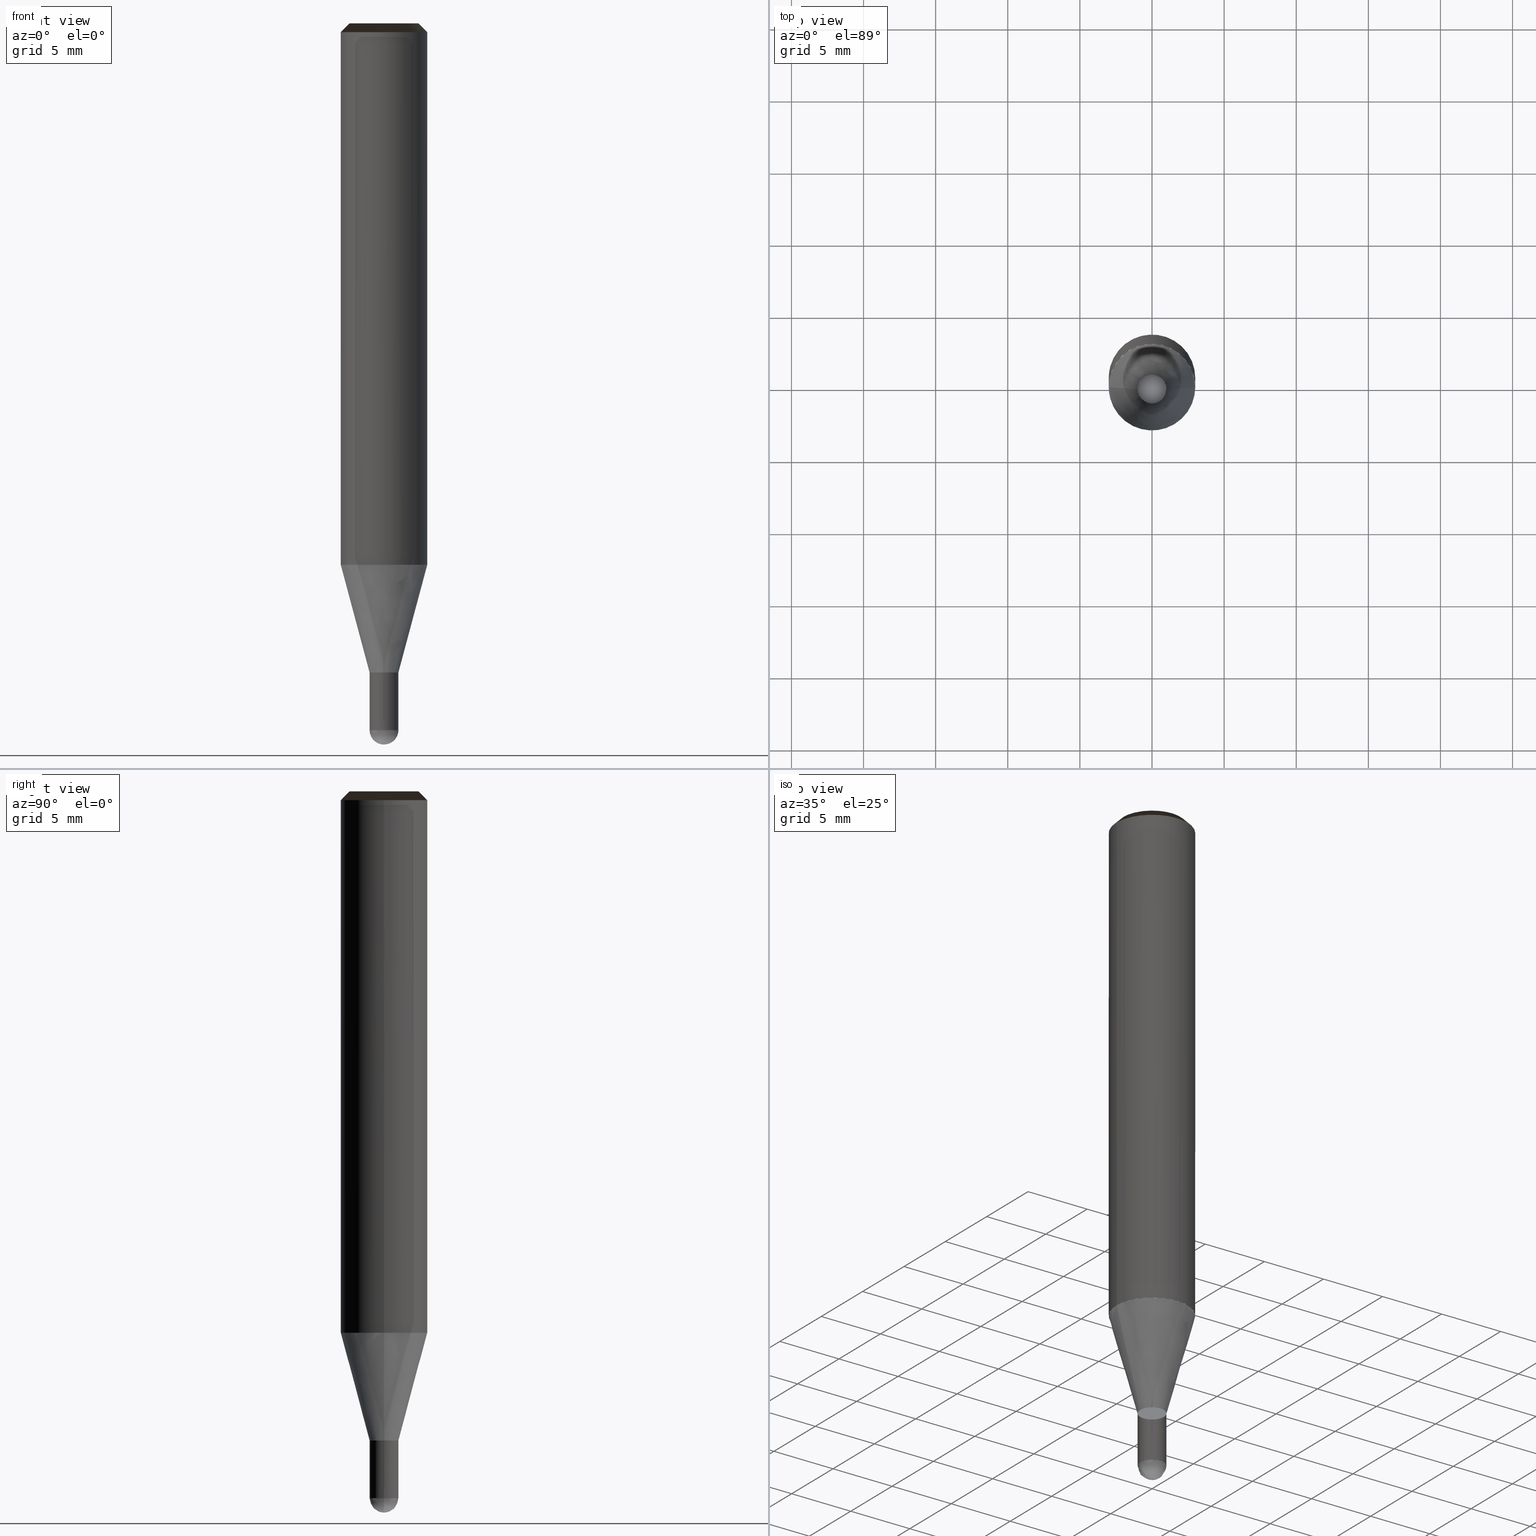
[diagram: canonical four-view strip — front | top / right | iso, engineering-drawing reading convention]
A machine part, canonical four-view strip (front | top / right | iso — engineering-drawing reading convention). The complete STEP part file that produces these views, byte-faithful:
ISO-10303-21;
HEADER;
/* Generated by ISBE GmbH (www.isbe.de) */
/* OPTION: using custom schema-name function */

FILE_DESCRIPTION(
/* description */ (''),
/* implementation_level */ '2;1');

FILE_NAME(
/*name*/ 'SHBS-2020-S06-STH',
/*time_stamp*/'2023-9-13T7:47:22',
/*author*/ ('ISBE GmbH'),
/*organization*/ ('ISBE GmbH'),
/*preprocessor_version*/ 'STEP IO v1.0',
/*originating_system*/ '',
/*authorisation*/ '');

FILE_SCHEMA (('AUTOMOTIVE_DESIGN'));
ENDSEC;

DATA;
#10=SHAPE_DEFINITION_REPRESENTATION(#11,#57);
#11=PRODUCT_DEFINITION_SHAPE('Document','',#13);
#12=PRODUCT_DEFINITION_CONTEXT('3D Mechanical Parts',#17,'design');
#13=PRODUCT_DEFINITION('A','First version',#14,#12);
#14=PRODUCT_DEFINITION_FORMATION_WITH_SPECIFIED_SOURCE('A','First version',#19,.MADE.);
#15=PRODUCT_RELATED_PRODUCT_CATEGORY('tool','tool',(#19));
#16=APPLICATION_PROTOCOL_DEFINITION('Draft International Standard', 'automotive_design',1999,#17);
#17=APPLICATION_CONTEXT('data for automotive mechanical design processes');
#18=PRODUCT_CONTEXT('3D Mechanical Parts',#17,'mechanical');
#19=PRODUCT('Document','Document','ISBE converted to STEP',(#18));
#20=(
LENGTH_UNIT()
NAMED_UNIT(*)
SI_UNIT(.MILLI.,.METRE.)
);
#21=(
NAMED_UNIT(*)
PLANE_ANGLE_UNIT()
SI_UNIT($,.RADIAN.)
);
#22=DIMENSIONAL_EXPONENTS(0.,0.,0.,0.,0.,0.,0.);
#23=PLANE_ANGLE_MEASURE_WITH_UNIT(PLANE_ANGLE_MEASURE(0.01745329252),#21);
#24=(
CONVERSION_BASED_UNIT('DEGREES',#23)
NAMED_UNIT(#22)
PLANE_ANGLE_UNIT()
);
#25=(
NAMED_UNIT(*)
SI_UNIT($,.STERADIAN.)
SOLID_ANGLE_UNIT()
);
#26=UNCERTAINTY_MEASURE_WITH_UNIT(LENGTH_MEASURE(0.001),#20, 'DISTANCE_ACCURACY_VALUE', 'Maximum model space distance between geometric entities at asserted connectivities');
#27=(
GEOMETRIC_REPRESENTATION_CONTEXT(3)
GLOBAL_UNCERTAINTY_ASSIGNED_CONTEXT((#26))
GLOBAL_UNIT_ASSIGNED_CONTEXT((#25,#24,#20))
REPRESENTATION_CONTEXT('ID1','3D')
);
#28=CARTESIAN_POINT('',(0.0,0.0,0.0));
#29=DIRECTION('',(1.0,0.0,0.0));
#30=DIRECTION('',(0.0,0.0,1.0));
#31=AXIS2_PLACEMENT_3D('',#28,#30,#29);
#32=CARTESIAN_POINT('',(0.0,0.0,0.0));
#33=DIRECTION('',(1.0,0.0,0.0));
#34=DIRECTION('',(0.0,0.0,1.0));
#35=AXIS2_PLACEMENT_3D('',#32,#34,#33);
#36=CARTESIAN_POINT('',(0.0,0.0,0.0));
#37=DIRECTION('',(1.0,0.0,0.0));
#38=DIRECTION('',(0.0,0.0,1.0));
#39=AXIS2_PLACEMENT_3D('',#36,#38,#37);
#40=CARTESIAN_POINT('',(0.0,0.0,0.0));
#41=DIRECTION('',(0.0,0.0,1.0));
#42=DIRECTION('',(1.0,0.0,0.0));
#43=AXIS2_PLACEMENT_3D('MCS',#40,#42,#41);
#44=CARTESIAN_POINT('',(0.0,0.0,37.535));
#45=DIRECTION('',(0.0,0.0,1.0));
#46=DIRECTION('',(1.0,0.0,0.0));
#47=AXIS2_PLACEMENT_3D('PCS',#44,#46,#45);
#48=CARTESIAN_POINT('',(0.0,0.0,-12.465));
#49=DIRECTION('',(0.0,0.0,1.0));
#50=DIRECTION('',(1.0,0.0,0.0));
#51=AXIS2_PLACEMENT_3D('CIP',#48,#50,#49);
#52=CARTESIAN_POINT('',(0.0,-1.0,-12.465));
#53=DIRECTION('',(0.0,0.0,1.0));
#54=DIRECTION('',(1.0,0.0,0.0));
#55=AXIS2_PLACEMENT_3D('CRP',#52,#54,#53);
#57=SHAPE_REPRESENTATION('Document',(#31,#35,#39,#43,#47,#51,#55),#27);
#58=DIRECTION('',(1.0,0.0,0.0));
#59=DIRECTION('',(0.0,0.0,1.0));
#60=CARTESIAN_POINT('',(-0.00999949069,-0.00010092544,-12.464839700933));
#61=CARTESIAN_POINT('',(-0.009685920771,-0.03055301235,-12.464486216201));
#62=CARTESIAN_POINT('',(-0.009291457939,-0.063392916779,-12.46294539275));
#63=CARTESIAN_POINT('',(-0.008789421059,-0.095619912058,-12.460379112949));
#64=CARTESIAN_POINT('',(-0.008119818459,-0.127619109183,-12.456790013823));
#65=CARTESIAN_POINT('',(-0.007226922046,-0.159436188152,-12.452181783414));
#66=CARTESIAN_POINT('',(-0.006056702059,-0.191062653826,-12.446559156991));
#67=CARTESIAN_POINT('',(-0.004556729719,-0.222474273261,-12.439927912182));
#68=CARTESIAN_POINT('',(-0.002676367485,-0.253640464034,-12.432294863039));
#69=CARTESIAN_POINT('',(-0.000367018786,-0.284527349918,-12.423667853037));
#70=CARTESIAN_POINT('',(0.002417608297,-0.315098943566,-12.414055747011));
#71=CARTESIAN_POINT('',(0.005721236441,-0.34531766284,-12.40346842205));
#72=CARTESIAN_POINT('',(0.009584758662,-0.375144581931,-12.391916757346));
#73=CARTESIAN_POINT('',(0.014045984796,-0.404539571835,-12.379412623016));
#74=CARTESIAN_POINT('',(0.019139396805,-0.433461396852,-12.365968867902));
#75=CARTESIAN_POINT('',(0.024895914581,-0.461867798592,-12.351599306373));
#76=CARTESIAN_POINT('',(0.031342673872,-0.489715583415,-12.336318704123));
#77=CARTESIAN_POINT('',(0.038502817926,-0.516960721807,-12.320142763005));
#78=CARTESIAN_POINT('',(0.046395304514,-0.543558464342,-12.303088104892));
#79=CARTESIAN_POINT('',(0.055034729976,-0.569463476692,-12.285172254597));
#80=CARTESIAN_POINT('',(0.064431171998,-0.594629994837,-12.266413621868));
#81=CARTESIAN_POINT('',(0.074590052777,-0.619012000731,-12.246831482468));
#82=CARTESIAN_POINT('',(0.085512024264,-0.642563418029,-12.226445958369));
#83=CARTESIAN_POINT('',(0.097192877061,-0.665238326989,-12.205277997075));
#84=CARTESIAN_POINT('',(0.109623474544,-0.686991197209,-12.183349350098));
#85=CARTESIAN_POINT('',(0.122789713617,-0.707777136545,-12.160682550603));
#86=CARTESIAN_POINT('',(0.136672513419,-0.727552154165,-12.137300890261));
#87=CARTESIAN_POINT('',(0.151247833111,-0.746273435475,-12.113228395308));
#88=CARTESIAN_POINT('',(0.166486719695,-0.763899626354,-12.088489801859));
#89=CARTESIAN_POINT('',(0.182355386609,-0.780391123918,-12.063110530491));
#90=CARTESIAN_POINT('',(0.198815323571,-0.795710370879,-12.037116660122));
#91=CARTESIAN_POINT('',(0.215823437907,-0.809822150358,-12.010534901211));
#92=CARTESIAN_POINT('',(0.233332227302,-0.822693877954,-11.983392568311));
#93=CARTESIAN_POINT('',(0.251289983599,-0.834295887739,-11.955717552004));
#94=CARTESIAN_POINT('',(0.269641026984,-0.844601708871,-11.927538290241));
#95=CARTESIAN_POINT('',(0.288325969537,-0.853588329477,-11.898883739118));
#96=CARTESIAN_POINT('',(0.307282006835,-0.861236444541,-11.869783343122));
#97=CARTESIAN_POINT('',(0.326443235946,-0.867530684618,-11.840267004879));
#98=CARTESIAN_POINT('',(0.345740997853,-0.872459822335,-11.810365054421));
#99=CARTESIAN_POINT('',(0.365104242024,-0.876016953826,-11.780108218024));
#100=CARTESIAN_POINT('',(0.384459910588,-0.878199652469,-11.749527586631));
#101=CARTESIAN_POINT('',(0.403733339271,-0.87901009256,-11.71865458391));
#102=CARTESIAN_POINT('',(0.422848672058,-0.878455140852,-11.687520933956));
#103=CARTESIAN_POINT('',(0.441729286306,-0.876546414226,-11.656158628701));
#104=CARTESIAN_POINT('',(0.460298224892,-0.873300302111,-11.624599895033));
#105=CARTESIAN_POINT('',(0.478478631842,-0.868737952659,-11.592877161685));
#106=CARTESIAN_POINT('',(0.496194187809,-0.862885222078,-11.561023025908));
#107=CARTESIAN_POINT('',(0.513369541735,-0.855772586924,-11.529070219981));
#108=CARTESIAN_POINT('',(0.52993073503,-0.847435019601,-11.497051577572));
#109=CARTESIAN_POINT('',(0.545805614673,-0.837911827695,-11.465));
#110=CARTESIAN_POINT('',(0.583175796161,-0.812345979723,-11.386568627451));
#111=CARTESIAN_POINT('',(0.619350383846,-0.785114706288,-11.308137254902));
#112=CARTESIAN_POINT('',(0.654255214647,-0.756273835398,-11.229705882353));
#113=CARTESIAN_POINT('',(0.687818728669,-0.725882494962,-11.151274509804));
#114=CARTESIAN_POINT('',(0.719972115907,-0.694002991576,-11.072843137255));
#115=CARTESIAN_POINT('',(0.750649457317,-0.660700682783,-10.994411764706));
#116=CARTESIAN_POINT('',(0.779787859962,-0.626043843078,-10.915980392157));
#117=CARTESIAN_POINT('',(0.807327585947,-0.590103523942,-10.837549019608));
#118=CARTESIAN_POINT('',(0.833212174896,-0.552953408169,-10.759117647059));
#119=CARTESIAN_POINT('',(0.857388559697,-0.51466965881,-10.68068627451));
#120=CARTESIAN_POINT('',(0.879807175305,-0.47533076303,-10.602254901961));
#121=CARTESIAN_POINT('',(0.900422060349,-0.43501737119,-10.523823529412));
#122=CARTESIAN_POINT('',(0.919190951367,-0.393812131512,-10.445392156863));
#123=CARTESIAN_POINT('',(0.936075369446,-0.35179952063,-10.366960784314));
#124=CARTESIAN_POINT('',(0.951040699116,-0.309065670407,-10.288529411765));
#125=CARTESIAN_POINT('',(0.964056259309,-0.265698191349,-10.210098039216));
#126=CARTESIAN_POINT('',(0.975095366266,-0.221785992992,-10.131666666667));
#127=CARTESIAN_POINT('',(0.984135388236,-0.177419101623,-10.053235294118));
#128=CARTESIAN_POINT('',(0.991157791884,-0.132688475716,-9.974803921569));
#129=CARTESIAN_POINT('',(0.996148180276,-0.087685819453,-9.89637254902));
#130=CARTESIAN_POINT('',(0.999096322402,-0.042503394718,-9.817941176471));
#131=CARTESIAN_POINT('',(0.99999617415,0.002766168057,-9.739509803922));
#132=CARTESIAN_POINT('',(0.998845890694,0.048030059792,-9.661078431373));
#133=CARTESIAN_POINT('',(0.99564783028,0.093195483033,-9.582647058824));
#134=CARTESIAN_POINT('',(0.99040854939,0.138169842203,-9.504215686275));
#135=CARTESIAN_POINT('',(0.983138789299,0.182860933432,-9.425784313725));
#136=CARTESIAN_POINT('',(0.973853454055,0.227177133589,-9.347352941176));
#137=CARTESIAN_POINT('',(0.962571579923,0.271027588126,-9.268921568627));
#138=CARTESIAN_POINT('',(0.949316296359,0.314322397337,-9.190490196078));
#139=CARTESIAN_POINT('',(0.934114778591,0.35697280067,-9.112058823529));
#140=CARTESIAN_POINT('',(0.916998191904,0.398891358699,-9.03362745098));
#141=CARTESIAN_POINT('',(0.89800162775,0.439992132382,-8.955196078431));
#142=CARTESIAN_POINT('',(0.877164031803,0.480190859254,-8.876764705882));
#143=CARTESIAN_POINT('',(0.854528124115,0.519405126175,-8.798333333333));
#144=CARTESIAN_POINT('',(0.830140311535,0.557554538287,-8.719901960784));
#145=CARTESIAN_POINT('',(0.804050592567,0.59456088384,-8.641470588235));
#146=CARTESIAN_POINT('',(0.776312454867,0.630348294531,-8.563039215686));
#147=CARTESIAN_POINT('',(0.746982765586,0.664843401048,-8.484607843137));
#148=CARTESIAN_POINT('',(0.716121654782,0.69797548349,-8.406176470588));
#149=CARTESIAN_POINT('',(0.683792392146,0.729676616347,-8.327745098039));
#150=CARTESIAN_POINT('',(0.650061257292,0.759881807762,-8.24931372549));
#151=CARTESIAN_POINT('',(0.614997403871,0.788529132773,-8.170882352941));
#152=CARTESIAN_POINT('',(0.578672717799,0.815559860265,-8.092450980392));
#153=CARTESIAN_POINT('',(0.541161669878,0.84091857338,-8.014019607843));
#154=CARTESIAN_POINT('',(0.502541163122,0.864553283129,-7.935588235294));
#155=CARTESIAN_POINT('',(0.462890375094,0.886415534975,-7.857156862745));
#156=CARTESIAN_POINT('',(0.422290595583,0.906460508176,-7.778725490196));
#157=CARTESIAN_POINT('',(0.380825059943,0.924647107668,-7.700294117647));
#158=CARTESIAN_POINT('',(0.338578778455,0.940938048322,-7.621862745098));
#159=CARTESIAN_POINT('',(0.295638362038,0.955299931378,-7.543431372549));
#160=CARTESIAN_POINT('',(0.252091844688,0.967703312923,-7.465));
#161=CARTESIAN_POINT('',(0.00999949069,0.00010092544,-12.464839700933));
#162=CARTESIAN_POINT('',(0.009685920771,0.03055301235,-12.464486216201));
#163=CARTESIAN_POINT('',(0.009291457939,0.063392916779,-12.46294539275));
#164=CARTESIAN_POINT('',(0.008789421059,0.095619912058,-12.460379112949));
#165=CARTESIAN_POINT('',(0.008119818459,0.127619109183,-12.456790013823));
#166=CARTESIAN_POINT('',(0.007226922046,0.159436188152,-12.452181783414));
#167=CARTESIAN_POINT('',(0.006056702059,0.191062653826,-12.446559156991));
#168=CARTESIAN_POINT('',(0.004556729719,0.222474273261,-12.439927912182));
#169=CARTESIAN_POINT('',(0.002676367485,0.253640464034,-12.432294863039));
#170=CARTESIAN_POINT('',(0.000367018786,0.284527349918,-12.423667853037));
#171=CARTESIAN_POINT('',(-0.002417608297,0.315098943566,-12.414055747011));
#172=CARTESIAN_POINT('',(-0.005721236441,0.34531766284,-12.40346842205));
#173=CARTESIAN_POINT('',(-0.009584758662,0.375144581931,-12.391916757346));
#174=CARTESIAN_POINT('',(-0.014045984796,0.404539571835,-12.379412623016));
#175=CARTESIAN_POINT('',(-0.019139396805,0.433461396852,-12.365968867902));
#176=CARTESIAN_POINT('',(-0.024895914581,0.461867798592,-12.351599306373));
#177=CARTESIAN_POINT('',(-0.031342673872,0.489715583415,-12.336318704123));
#178=CARTESIAN_POINT('',(-0.038502817926,0.516960721807,-12.320142763005));
#179=CARTESIAN_POINT('',(-0.046395304514,0.543558464342,-12.303088104892));
#180=CARTESIAN_POINT('',(-0.055034729976,0.569463476692,-12.285172254597));
#181=CARTESIAN_POINT('',(-0.064431171998,0.594629994837,-12.266413621868));
#182=CARTESIAN_POINT('',(-0.074590052777,0.619012000731,-12.246831482468));
#183=CARTESIAN_POINT('',(-0.085512024264,0.642563418029,-12.226445958369));
#184=CARTESIAN_POINT('',(-0.097192877061,0.665238326989,-12.205277997075));
#185=CARTESIAN_POINT('',(-0.109623474544,0.686991197209,-12.183349350098));
#186=CARTESIAN_POINT('',(-0.122789713617,0.707777136545,-12.160682550603));
#187=CARTESIAN_POINT('',(-0.136672513419,0.727552154165,-12.137300890261));
#188=CARTESIAN_POINT('',(-0.151247833111,0.746273435475,-12.113228395308));
#189=CARTESIAN_POINT('',(-0.166486719695,0.763899626354,-12.088489801859));
#190=CARTESIAN_POINT('',(-0.182355386609,0.780391123918,-12.063110530491));
#191=CARTESIAN_POINT('',(-0.198815323571,0.795710370879,-12.037116660122));
#192=CARTESIAN_POINT('',(-0.215823437907,0.809822150358,-12.010534901211));
#193=CARTESIAN_POINT('',(-0.233332227302,0.822693877954,-11.983392568311));
#194=CARTESIAN_POINT('',(-0.251289983599,0.834295887739,-11.955717552004));
#195=CARTESIAN_POINT('',(-0.269641026984,0.844601708871,-11.927538290241));
#196=CARTESIAN_POINT('',(-0.288325969537,0.853588329477,-11.898883739118));
#197=CARTESIAN_POINT('',(-0.307282006835,0.861236444541,-11.869783343122));
#198=CARTESIAN_POINT('',(-0.326443235946,0.867530684618,-11.840267004879));
#199=CARTESIAN_POINT('',(-0.345740997853,0.872459822335,-11.810365054421));
#200=CARTESIAN_POINT('',(-0.365104242024,0.876016953826,-11.780108218024));
#201=CARTESIAN_POINT('',(-0.384459910588,0.878199652469,-11.749527586631));
#202=CARTESIAN_POINT('',(-0.403733339271,0.87901009256,-11.71865458391));
#203=CARTESIAN_POINT('',(-0.422848672058,0.878455140852,-11.687520933956));
#204=CARTESIAN_POINT('',(-0.441729286306,0.876546414226,-11.656158628701));
#205=CARTESIAN_POINT('',(-0.460298224892,0.873300302111,-11.624599895033));
#206=CARTESIAN_POINT('',(-0.478478631842,0.868737952659,-11.592877161685));
#207=CARTESIAN_POINT('',(-0.496194187809,0.862885222078,-11.561023025908));
#208=CARTESIAN_POINT('',(-0.513369541735,0.855772586924,-11.529070219981));
#209=CARTESIAN_POINT('',(-0.52993073503,0.847435019601,-11.497051577572));
#210=CARTESIAN_POINT('',(-0.545805614673,0.837911827695,-11.465));
#211=CARTESIAN_POINT('',(-0.583175796161,0.812345979723,-11.386568627451));
#212=CARTESIAN_POINT('',(-0.619350383846,0.785114706288,-11.308137254902));
#213=CARTESIAN_POINT('',(-0.654255214647,0.756273835398,-11.229705882353));
#214=CARTESIAN_POINT('',(-0.687818728669,0.725882494962,-11.151274509804));
#215=CARTESIAN_POINT('',(-0.719972115907,0.694002991576,-11.072843137255));
#216=CARTESIAN_POINT('',(-0.750649457317,0.660700682783,-10.994411764706));
#217=CARTESIAN_POINT('',(-0.779787859962,0.626043843078,-10.915980392157));
#218=CARTESIAN_POINT('',(-0.807327585947,0.590103523942,-10.837549019608));
#219=CARTESIAN_POINT('',(-0.833212174896,0.552953408169,-10.759117647059));
#220=CARTESIAN_POINT('',(-0.857388559697,0.51466965881,-10.68068627451));
#221=CARTESIAN_POINT('',(-0.879807175305,0.47533076303,-10.602254901961));
#222=CARTESIAN_POINT('',(-0.900422060349,0.43501737119,-10.523823529412));
#223=CARTESIAN_POINT('',(-0.919190951367,0.393812131512,-10.445392156863));
#224=CARTESIAN_POINT('',(-0.936075369446,0.35179952063,-10.366960784314));
#225=CARTESIAN_POINT('',(-0.951040699116,0.309065670407,-10.288529411765));
#226=CARTESIAN_POINT('',(-0.964056259309,0.265698191349,-10.210098039216));
#227=CARTESIAN_POINT('',(-0.975095366266,0.221785992992,-10.131666666667));
#228=CARTESIAN_POINT('',(-0.984135388236,0.177419101623,-10.053235294118));
#229=CARTESIAN_POINT('',(-0.991157791884,0.132688475716,-9.974803921569));
#230=CARTESIAN_POINT('',(-0.996148180276,0.087685819453,-9.89637254902));
#231=CARTESIAN_POINT('',(-0.999096322402,0.042503394718,-9.817941176471));
#232=CARTESIAN_POINT('',(-0.99999617415,-0.002766168057,-9.739509803922));
#233=CARTESIAN_POINT('',(-0.998845890694,-0.048030059792,-9.661078431373));
#234=CARTESIAN_POINT('',(-0.99564783028,-0.093195483033,-9.582647058824));
#235=CARTESIAN_POINT('',(-0.99040854939,-0.138169842203,-9.504215686275));
#236=CARTESIAN_POINT('',(-0.983138789299,-0.182860933432,-9.425784313725));
#237=CARTESIAN_POINT('',(-0.973853454055,-0.227177133589,-9.347352941176));
#238=CARTESIAN_POINT('',(-0.962571579923,-0.271027588126,-9.268921568627));
#239=CARTESIAN_POINT('',(-0.949316296359,-0.314322397337,-9.190490196078));
#240=CARTESIAN_POINT('',(-0.934114778591,-0.35697280067,-9.112058823529));
#241=CARTESIAN_POINT('',(-0.916998191904,-0.398891358699,-9.03362745098));
#242=CARTESIAN_POINT('',(-0.89800162775,-0.439992132382,-8.955196078431));
#243=CARTESIAN_POINT('',(-0.877164031803,-0.480190859254,-8.876764705882));
#244=CARTESIAN_POINT('',(-0.854528124115,-0.519405126175,-8.798333333333));
#245=CARTESIAN_POINT('',(-0.830140311535,-0.557554538287,-8.719901960784));
#246=CARTESIAN_POINT('',(-0.804050592567,-0.59456088384,-8.641470588235));
#247=CARTESIAN_POINT('',(-0.776312454867,-0.630348294531,-8.563039215686));
#248=CARTESIAN_POINT('',(-0.746982765586,-0.664843401048,-8.484607843137));
#249=CARTESIAN_POINT('',(-0.716121654782,-0.69797548349,-8.406176470588));
#250=CARTESIAN_POINT('',(-0.683792392146,-0.729676616347,-8.327745098039));
#251=CARTESIAN_POINT('',(-0.650061257292,-0.759881807762,-8.24931372549));
#252=CARTESIAN_POINT('',(-0.614997403871,-0.788529132773,-8.170882352941));
#253=CARTESIAN_POINT('',(-0.578672717799,-0.815559860265,-8.092450980392));
#254=CARTESIAN_POINT('',(-0.541161669878,-0.84091857338,-8.014019607843));
#255=CARTESIAN_POINT('',(-0.502541163122,-0.864553283129,-7.935588235294));
#256=CARTESIAN_POINT('',(-0.462890375094,-0.886415534975,-7.857156862745));
#257=CARTESIAN_POINT('',(-0.422290595583,-0.906460508176,-7.778725490196));
#258=CARTESIAN_POINT('',(-0.380825059943,-0.924647107668,-7.700294117647));
#259=CARTESIAN_POINT('',(-0.338578778455,-0.940938048322,-7.621862745098));
#260=CARTESIAN_POINT('',(-0.295638362038,-0.955299931378,-7.543431372549));
#261=CARTESIAN_POINT('',(-0.252091844688,-0.967703312923,-7.465));
#262=CARTESIAN_POINT('',(0.0,0.0,-12.465));
#263=CARTESIAN_POINT('',(1.0,0.0,-12.465));
#264=CARTESIAN_POINT('',(1.0,1.0,-12.465));
#265=CARTESIAN_POINT('',(0.0,1.0,-12.465));
#266=CARTESIAN_POINT('',(-1.0,1.0,-12.465));
#267=CARTESIAN_POINT('',(-1.0,0.0,-12.465));
#268=CARTESIAN_POINT('',(1.0,0.0,-11.465));
#269=CARTESIAN_POINT('',(1.0,1.0,-11.465));
#270=CARTESIAN_POINT('',(0.0,1.0,-11.465));
#271=CARTESIAN_POINT('',(-1.0,1.0,-11.465));
#272=CARTESIAN_POINT('',(-1.0,0.0,-11.465));
#273=CARTESIAN_POINT('',(1.0,0.0,-7.465));
#274=CARTESIAN_POINT('',(1.0,1.0,-7.465));
#275=CARTESIAN_POINT('',(0.0,1.0,-7.465));
#276=CARTESIAN_POINT('',(-1.0,1.0,-7.465));
#277=CARTESIAN_POINT('',(-1.0,0.0,-7.465));
#278=CARTESIAN_POINT('',(0.0,0.0,-7.465));
#279=CARTESIAN_POINT('',(-1.0,-1.0,-12.465));
#280=CARTESIAN_POINT('',(0.0,-1.0,-12.465));
#281=CARTESIAN_POINT('',(1.0,-1.0,-12.465));
#282=CARTESIAN_POINT('',(-1.0,-1.0,-11.465));
#283=CARTESIAN_POINT('',(0.0,-1.0,-11.465));
#284=CARTESIAN_POINT('',(1.0,-1.0,-11.465));
#285=CARTESIAN_POINT('',(-1.0,-1.0,-7.465));
#286=CARTESIAN_POINT('',(0.0,-1.0,-7.465));
#287=CARTESIAN_POINT('',(1.0,-1.0,-7.465));
#288=CARTESIAN_POINT('',(1.0,0.0,-7.464101615138));
#289=CARTESIAN_POINT('',(1.0,1.0,-7.464101615138));
#290=CARTESIAN_POINT('',(0.0,1.0,-7.464101615138));
#291=CARTESIAN_POINT('',(-1.0,1.0,-7.464101615138));
#292=CARTESIAN_POINT('',(-1.0,0.0,-7.464101615138));
#293=CARTESIAN_POINT('',(3.0,0.0,-0.0));
#294=CARTESIAN_POINT('',(3.0,3.0,-0.0));
#295=CARTESIAN_POINT('',(0.0,3.0,-0.0));
#296=CARTESIAN_POINT('',(-3.0,3.0,-0.0));
#297=CARTESIAN_POINT('',(-3.0,0.0,-0.0));
#298=CARTESIAN_POINT('',(3.0,0.0,36.935));
#299=CARTESIAN_POINT('',(3.0,3.0,36.935));
#300=CARTESIAN_POINT('',(0.0,3.0,36.935));
#301=CARTESIAN_POINT('',(-3.0,3.0,36.935));
#302=CARTESIAN_POINT('',(-3.0,0.0,36.935));
#303=CARTESIAN_POINT('',(2.4,0.0,37.535));
#304=CARTESIAN_POINT('',(2.4,2.4,37.535));
#305=CARTESIAN_POINT('',(0.0,2.4,37.535));
#306=CARTESIAN_POINT('',(-2.4,2.4,37.535));
#307=CARTESIAN_POINT('',(-2.4,0.0,37.535));
#308=CARTESIAN_POINT('',(0.0,0.0,37.535));
#309=CARTESIAN_POINT('',(-1.0,-1.0,-7.464101615138));
#310=CARTESIAN_POINT('',(0.0,-1.0,-7.464101615138));
#311=CARTESIAN_POINT('',(1.0,-1.0,-7.464101615138));
#312=CARTESIAN_POINT('',(-3.0,-3.0,-0.0));
#313=CARTESIAN_POINT('',(0.0,-3.0,-0.0));
#314=CARTESIAN_POINT('',(3.0,-3.0,-0.0));
#315=CARTESIAN_POINT('',(-3.0,-3.0,36.935));
#316=CARTESIAN_POINT('',(0.0,-3.0,36.935));
#317=CARTESIAN_POINT('',(3.0,-3.0,36.935));
#318=CARTESIAN_POINT('',(-2.4,-2.4,37.535));
#319=CARTESIAN_POINT('',(0.0,-2.4,37.535));
#320=CARTESIAN_POINT('',(2.4,-2.4,37.535));
#321=(
BOUNDED_CURVE()
B_SPLINE_CURVE(1,(#60,#61,#62,#63,#64,#65,#66,#67,#68,#69,#70,#71,#72,#73,#74,#75,#76,#77,#78,#79,#80,#81,#82,#83,#84,#85,#86,#87,#88,#89,#90,#91,#92,#93,#94,#95,#96,#97,#98,#99,#100,#101,#102,#103,#104,#105,#106,#107,#108,#109,#110,#111,#112,#113,#114,#115,#116,#117,#118,#119,#120,#121,#122,#123,#124,#125,#126,#127,#128,#129,#130,#131,#132,#133,#134,#135,#136,#137,#138,#139,#140,#141,#142,#143,#144,#145,#146,#147,#148,#149,#150,#151,#152,#153,#154,#155,#156,#157,#158,#159,#160),.UNSPECIFIED.,.F.,.F.)
B_SPLINE_CURVE_WITH_KNOTS((2,1,1,1,1,1,1,1,1,1,1,1,1,1,1,1,1,1,1,1,1,1,1,1,1,1,1,1,1,1,1,1,1,1,1,1,1,1,1,1,1,1,1,1,1,1,1,1,1,1,1,1,1,1,1,1,1,1,1,1,1,1,1,1,1,1,1,1,1,1,1,1,1,1,1,1,1,1,1,1,1,1,1,1,1,1,1,1,1,1,1,1,1,1,1,1,1,1,1,1,2),
(0.0,0.004845812052,0.010077090986,0.015221577332,0.020345999963,0.025463207082,0.03057758635,0.035691214373,0.040805380726,0.045921099868,0.051039319837,0.056161019135,0.061287255129,0.066419188186,0.071558091844,0.076705353858,0.08186247059,0.087031036172,0.092212727367,0.09740928484,0.102622491478,0.107854148334,0.113106048811,0.118379951674,0.123677553494,0.129000461124,0.134350164773,0.139728012226,0.145135184697,0.150572674757,0.15604126671,0.161541519715,0.167073753897,0.172638039602,0.178234189886,0.183861756288,0.189520027839,0.195208033254,0.200924546184,0.206668093381,0.212436965597,0.218229231025,0.224042751076,0.229875198253,0.235724075907,0.24158673964,0.24746042012,0.253342247063,0.25922927417,0.265118504765,0.279527945848,0.293937386931,0.308346828014,0.322756269097,0.33716571018,0.351575151263,0.365984592346,0.380394033429,0.394803474512,0.409212915595,0.423622356678,0.438031797761,0.452441238844,0.466850679927,0.48126012101,0.495669562093,0.510079003176,0.524488444259,0.538897885342,0.553307326426,0.567716767509,0.582126208592,0.596535649675,0.610945090758,0.625354531841,0.639763972924,0.654173414007,0.66858285509,0.682992296173,0.697401737256,0.711811178339,0.726220619422,0.740630060505,0.755039501588,0.769448942671,0.783858383754,0.798267824837,0.81267726592,0.827086707003,0.841496148086,0.85590558917,0.870315030253,0.884724471336,0.899133912419,0.913543353502,0.927952794585,0.942362235668,0.956771676751,0.971181117834,0.985590558917,1.0),.UNSPECIFIED.)
CURVE()
GEOMETRIC_REPRESENTATION_ITEM()
RATIONAL_B_SPLINE_CURVE((1.0,1.0,1.0,1.0,1.0,1.0,1.0,1.0,1.0,1.0,1.0,1.0,1.0,1.0,1.0,1.0,1.0,1.0,1.0,1.0,1.0,1.0,1.0,1.0,1.0,1.0,1.0,1.0,1.0,1.0,1.0,1.0,1.0,1.0,1.0,1.0,1.0,1.0,1.0,1.0,1.0,1.0,1.0,1.0,1.0,1.0,1.0,1.0,1.0,1.0,1.0,1.0,1.0,1.0,1.0,1.0,1.0,1.0,1.0,1.0,1.0,1.0,1.0,1.0,1.0,1.0,1.0,1.0,1.0,1.0,1.0,1.0,1.0,1.0,1.0,1.0,1.0,1.0,1.0,1.0,1.0,1.0,1.0,1.0,1.0,1.0,1.0,1.0,1.0,1.0,1.0,1.0,1.0,1.0,1.0,1.0,1.0,1.0,1.0,1.0,1.0))
REPRESENTATION_ITEM('')
);
#322=(
BOUNDED_CURVE()
B_SPLINE_CURVE(1,(#161,#162,#163,#164,#165,#166,#167,#168,#169,#170,#171,#172,#173,#174,#175,#176,#177,#178,#179,#180,#181,#182,#183,#184,#185,#186,#187,#188,#189,#190,#191,#192,#193,#194,#195,#196,#197,#198,#199,#200,#201,#202,#203,#204,#205,#206,#207,#208,#209,#210,#211,#212,#213,#214,#215,#216,#217,#218,#219,#220,#221,#222,#223,#224,#225,#226,#227,#228,#229,#230,#231,#232,#233,#234,#235,#236,#237,#238,#239,#240,#241,#242,#243,#244,#245,#246,#247,#248,#249,#250,#251,#252,#253,#254,#255,#256,#257,#258,#259,#260,#261),.UNSPECIFIED.,.F.,.F.)
B_SPLINE_CURVE_WITH_KNOTS((2,1,1,1,1,1,1,1,1,1,1,1,1,1,1,1,1,1,1,1,1,1,1,1,1,1,1,1,1,1,1,1,1,1,1,1,1,1,1,1,1,1,1,1,1,1,1,1,1,1,1,1,1,1,1,1,1,1,1,1,1,1,1,1,1,1,1,1,1,1,1,1,1,1,1,1,1,1,1,1,1,1,1,1,1,1,1,1,1,1,1,1,1,1,1,1,1,1,1,1,2),
(0.0,0.004845812052,0.010077090986,0.015221577332,0.020345999963,0.025463207082,0.03057758635,0.035691214373,0.040805380726,0.045921099868,0.051039319837,0.056161019135,0.061287255129,0.066419188186,0.071558091844,0.076705353858,0.08186247059,0.087031036172,0.092212727367,0.09740928484,0.102622491478,0.107854148334,0.113106048811,0.118379951674,0.123677553494,0.129000461124,0.134350164773,0.139728012226,0.145135184697,0.150572674757,0.15604126671,0.161541519715,0.167073753897,0.172638039602,0.178234189886,0.183861756288,0.189520027839,0.195208033254,0.200924546184,0.206668093381,0.212436965597,0.218229231025,0.224042751076,0.229875198253,0.235724075907,0.24158673964,0.24746042012,0.253342247063,0.25922927417,0.265118504765,0.279527945848,0.293937386931,0.308346828014,0.322756269097,0.33716571018,0.351575151263,0.365984592346,0.380394033429,0.394803474512,0.409212915595,0.423622356678,0.438031797761,0.452441238844,0.466850679927,0.48126012101,0.495669562093,0.510079003176,0.524488444259,0.538897885342,0.553307326426,0.567716767509,0.582126208592,0.596535649675,0.610945090758,0.625354531841,0.639763972924,0.654173414007,0.66858285509,0.682992296173,0.697401737256,0.711811178339,0.726220619422,0.740630060505,0.755039501588,0.769448942671,0.783858383754,0.798267824837,0.81267726592,0.827086707003,0.841496148086,0.85590558917,0.870315030253,0.884724471336,0.899133912419,0.913543353502,0.927952794585,0.942362235668,0.956771676751,0.971181117834,0.985590558917,1.0),.UNSPECIFIED.)
CURVE()
GEOMETRIC_REPRESENTATION_ITEM()
RATIONAL_B_SPLINE_CURVE((1.0,1.0,1.0,1.0,1.0,1.0,1.0,1.0,1.0,1.0,1.0,1.0,1.0,1.0,1.0,1.0,1.0,1.0,1.0,1.0,1.0,1.0,1.0,1.0,1.0,1.0,1.0,1.0,1.0,1.0,1.0,1.0,1.0,1.0,1.0,1.0,1.0,1.0,1.0,1.0,1.0,1.0,1.0,1.0,1.0,1.0,1.0,1.0,1.0,1.0,1.0,1.0,1.0,1.0,1.0,1.0,1.0,1.0,1.0,1.0,1.0,1.0,1.0,1.0,1.0,1.0,1.0,1.0,1.0,1.0,1.0,1.0,1.0,1.0,1.0,1.0,1.0,1.0,1.0,1.0,1.0,1.0,1.0,1.0,1.0,1.0,1.0,1.0,1.0,1.0,1.0,1.0,1.0,1.0,1.0,1.0,1.0,1.0,1.0,1.0,1.0))
REPRESENTATION_ITEM('')
);
#323=SHAPE_REPRESENTATION_RELATIONSHIP('','',#57,#324);
#324=GEOMETRICALLY_BOUNDED_WIREFRAME_SHAPE_REPRESENTATION('Curves',(#325,#31),#27);
#325=GEOMETRIC_CURVE_SET('CurveSet',(#321,#322));
#326=(
BOUNDED_SURFACE()
B_SPLINE_SURFACE(2,2,(
(#262,#262,#262,#262,#262),
(#263,#264,#265,#266,#267),
(#268,#269,#270,#271,#272)
), .UNSPECIFIED.,.F.,.F.,.F.)
B_SPLINE_SURFACE_WITH_KNOTS((3,3),(3,2,3),(
0.0,1.0),(
0.0,0.5,1.0), .UNSPECIFIED.)
GEOMETRIC_REPRESENTATION_ITEM()
RATIONAL_B_SPLINE_SURFACE(((1.0,0.707106781187,1.0,0.707106781187,1.0),
(0.707106781187,0.5,0.707106781187,0.5,0.707106781187),
(1.0,0.707106781187,1.0,0.707106781187,1.0)
))
REPRESENTATION_ITEM('')
SURFACE()
);
#327=(
BOUNDED_CURVE()
B_SPLINE_CURVE(2,(#268,#269,#270,#271,#272),.UNSPECIFIED.,.F.,.F.)
B_SPLINE_CURVE_WITH_KNOTS((3,2,3),
(0.0,0.5,1.0),.UNSPECIFIED.)
CURVE()
GEOMETRIC_REPRESENTATION_ITEM()
RATIONAL_B_SPLINE_CURVE((1.0,0.707106781187,1.0,0.707106781187,1.0))
REPRESENTATION_ITEM('')
);
#328=(
BOUNDED_CURVE()
B_SPLINE_CURVE(2,(#272,#267,#262),.UNSPECIFIED.,.F.,.F.)
B_SPLINE_CURVE_WITH_KNOTS((3,3),
(0.0,1.0),.UNSPECIFIED.)
CURVE()
GEOMETRIC_REPRESENTATION_ITEM()
RATIONAL_B_SPLINE_CURVE((1.0,0.707106781187,1.0))
REPRESENTATION_ITEM('')
);
#329=(
BOUNDED_CURVE()
B_SPLINE_CURVE(2,(#262,#263,#268),.UNSPECIFIED.,.F.,.F.)
B_SPLINE_CURVE_WITH_KNOTS((3,3),
(0.0,1.0),.UNSPECIFIED.)
CURVE()
GEOMETRIC_REPRESENTATION_ITEM()
RATIONAL_B_SPLINE_CURVE((1.0,0.707106781187,1.0))
REPRESENTATION_ITEM('')
);
#330=VERTEX_POINT('',#262);
#331=VERTEX_POINT('',#268);
#332=VERTEX_POINT('',#272);
#333=EDGE_CURVE('',#331,#332,#327,.T.);
#334=EDGE_CURVE('',#332,#330,#328,.T.);
#335=EDGE_CURVE('',#330,#331,#329,.T.);
#336=ORIENTED_EDGE('',*,*,#333,.T.);
#337=ORIENTED_EDGE('',*,*,#334,.T.);
#338=ORIENTED_EDGE('',*,*,#335,.T.);
#339=EDGE_LOOP('',(#336,#337,#338));
#340=FACE_OUTER_BOUND('',#339,.T.);
#341=ADVANCED_FACE('',(#340),#326,.T.);
#342=(
BOUNDED_SURFACE()
B_SPLINE_SURFACE(1,2,(
(#268,#269,#270,#271,#272),
(#273,#274,#275,#276,#277)
), .UNSPECIFIED.,.F.,.F.,.F.)
B_SPLINE_SURFACE_WITH_KNOTS((2,2),(3,2,3),(
0.0,1.0),(
0.0,0.5,1.0), .UNSPECIFIED.)
GEOMETRIC_REPRESENTATION_ITEM()
RATIONAL_B_SPLINE_SURFACE(((1.0,0.707106781187,1.0,0.707106781187,1.0),
(1.0,0.707106781187,1.0,0.707106781187,1.0)
))
REPRESENTATION_ITEM('')
SURFACE()
);
#343=(
BOUNDED_CURVE()
B_SPLINE_CURVE(2,(#273,#274,#275,#276,#277),.UNSPECIFIED.,.F.,.F.)
B_SPLINE_CURVE_WITH_KNOTS((3,2,3),
(0.0,0.5,1.0),.UNSPECIFIED.)
CURVE()
GEOMETRIC_REPRESENTATION_ITEM()
RATIONAL_B_SPLINE_CURVE((1.0,0.707106781187,1.0,0.707106781187,1.0))
REPRESENTATION_ITEM('')
);
#344=(
BOUNDED_CURVE()
B_SPLINE_CURVE(1,(#277,#272),.UNSPECIFIED.,.F.,.F.)
B_SPLINE_CURVE_WITH_KNOTS((2,2),
(0.0,1.0),.UNSPECIFIED.)
CURVE()
GEOMETRIC_REPRESENTATION_ITEM()
RATIONAL_B_SPLINE_CURVE((1.0,1.0))
REPRESENTATION_ITEM('')
);
#345=(
BOUNDED_CURVE()
B_SPLINE_CURVE(2,(#272,#271,#270,#269,#268),.UNSPECIFIED.,.F.,.F.)
B_SPLINE_CURVE_WITH_KNOTS((3,2,3),
(0.0,0.5,1.0),.UNSPECIFIED.)
CURVE()
GEOMETRIC_REPRESENTATION_ITEM()
RATIONAL_B_SPLINE_CURVE((1.0,0.707106781187,1.0,0.707106781187,1.0))
REPRESENTATION_ITEM('')
);
#346=(
BOUNDED_CURVE()
B_SPLINE_CURVE(1,(#268,#273),.UNSPECIFIED.,.F.,.F.)
B_SPLINE_CURVE_WITH_KNOTS((2,2),
(0.0,1.0),.UNSPECIFIED.)
CURVE()
GEOMETRIC_REPRESENTATION_ITEM()
RATIONAL_B_SPLINE_CURVE((1.0,1.0))
REPRESENTATION_ITEM('')
);
#347=VERTEX_POINT('',#268);
#348=VERTEX_POINT('',#272);
#349=VERTEX_POINT('',#273);
#350=VERTEX_POINT('',#277);
#351=EDGE_CURVE('',#349,#350,#343,.T.);
#352=EDGE_CURVE('',#350,#348,#344,.T.);
#353=EDGE_CURVE('',#348,#347,#345,.T.);
#354=EDGE_CURVE('',#347,#349,#346,.T.);
#355=ORIENTED_EDGE('',*,*,#351,.T.);
#356=ORIENTED_EDGE('',*,*,#352,.T.);
#357=ORIENTED_EDGE('',*,*,#353,.T.);
#358=ORIENTED_EDGE('',*,*,#354,.T.);
#359=EDGE_LOOP('',(#355,#356,#357,#358));
#360=FACE_OUTER_BOUND('',#359,.T.);
#361=ADVANCED_FACE('',(#360),#342,.T.);
#362=(
BOUNDED_SURFACE()
B_SPLINE_SURFACE(1,2,(
(#273,#274,#275,#276,#277),
(#278,#278,#278,#278,#278)
), .UNSPECIFIED.,.F.,.F.,.F.)
B_SPLINE_SURFACE_WITH_KNOTS((2,2),(3,2,3),(
0.0,1.0),(
0.0,0.5,1.0), .UNSPECIFIED.)
GEOMETRIC_REPRESENTATION_ITEM()
RATIONAL_B_SPLINE_SURFACE(((1.0,0.707106781187,1.0,0.707106781187,1.0),
(1.0,0.707106781187,1.0,0.707106781187,1.0)
))
REPRESENTATION_ITEM('')
SURFACE()
);
#363=(
BOUNDED_CURVE()
B_SPLINE_CURVE(1,(#278,#273),.UNSPECIFIED.,.F.,.F.)
B_SPLINE_CURVE_WITH_KNOTS((2,2),
(0.0,1.0),.UNSPECIFIED.)
CURVE()
GEOMETRIC_REPRESENTATION_ITEM()
RATIONAL_B_SPLINE_CURVE((1.0,1.0))
REPRESENTATION_ITEM('')
);
#364=(
BOUNDED_CURVE()
B_SPLINE_CURVE(2,(#273,#274,#275,#276,#277),.UNSPECIFIED.,.F.,.F.)
B_SPLINE_CURVE_WITH_KNOTS((3,2,3),
(0.0,0.5,1.0),.UNSPECIFIED.)
CURVE()
GEOMETRIC_REPRESENTATION_ITEM()
RATIONAL_B_SPLINE_CURVE((1.0,0.707106781187,1.0,0.707106781187,1.0))
REPRESENTATION_ITEM('')
);
#365=(
BOUNDED_CURVE()
B_SPLINE_CURVE(1,(#277,#278),.UNSPECIFIED.,.F.,.F.)
B_SPLINE_CURVE_WITH_KNOTS((2,2),
(0.0,1.0),.UNSPECIFIED.)
CURVE()
GEOMETRIC_REPRESENTATION_ITEM()
RATIONAL_B_SPLINE_CURVE((1.0,1.0))
REPRESENTATION_ITEM('')
);
#366=VERTEX_POINT('',#273);
#367=VERTEX_POINT('',#277);
#368=VERTEX_POINT('',#278);
#369=EDGE_CURVE('',#368,#366,#363,.T.);
#370=EDGE_CURVE('',#366,#367,#364,.T.);
#371=EDGE_CURVE('',#367,#368,#365,.T.);
#372=ORIENTED_EDGE('',*,*,#369,.T.);
#373=ORIENTED_EDGE('',*,*,#370,.T.);
#374=ORIENTED_EDGE('',*,*,#371,.T.);
#375=EDGE_LOOP('',(#372,#373,#374));
#376=FACE_OUTER_BOUND('',#375,.T.);
#377=ADVANCED_FACE('',(#376),#362,.T.);
#378=(
BOUNDED_SURFACE()
B_SPLINE_SURFACE(2,2,(
(#262,#262,#262,#262,#262),
(#267,#279,#280,#281,#263),
(#272,#282,#283,#284,#268)
), .UNSPECIFIED.,.F.,.F.,.F.)
B_SPLINE_SURFACE_WITH_KNOTS((3,3),(3,2,3),(
0.0,1.0),(
0.0,0.5,1.0), .UNSPECIFIED.)
GEOMETRIC_REPRESENTATION_ITEM()
RATIONAL_B_SPLINE_SURFACE(((1.0,0.707106781187,1.0,0.707106781187,1.0),
(0.707106781187,0.5,0.707106781187,0.5,0.707106781187),
(1.0,0.707106781187,1.0,0.707106781187,1.0)
))
REPRESENTATION_ITEM('')
SURFACE()
);
#379=(
BOUNDED_CURVE()
B_SPLINE_CURVE(2,(#272,#267,#262),.UNSPECIFIED.,.F.,.F.)
B_SPLINE_CURVE_WITH_KNOTS((3,3),
(0.0,1.0),.UNSPECIFIED.)
CURVE()
GEOMETRIC_REPRESENTATION_ITEM()
RATIONAL_B_SPLINE_CURVE((1.0,0.707106781187,1.0))
REPRESENTATION_ITEM('')
);
#380=(
BOUNDED_CURVE()
B_SPLINE_CURVE(2,(#262,#263,#268),.UNSPECIFIED.,.F.,.F.)
B_SPLINE_CURVE_WITH_KNOTS((3,3),
(0.0,1.0),.UNSPECIFIED.)
CURVE()
GEOMETRIC_REPRESENTATION_ITEM()
RATIONAL_B_SPLINE_CURVE((1.0,0.707106781187,1.0))
REPRESENTATION_ITEM('')
);
#381=(
BOUNDED_CURVE()
B_SPLINE_CURVE(2,(#268,#284,#283,#282,#272),.UNSPECIFIED.,.F.,.F.)
B_SPLINE_CURVE_WITH_KNOTS((3,2,3),
(0.0,0.5,1.0),.UNSPECIFIED.)
CURVE()
GEOMETRIC_REPRESENTATION_ITEM()
RATIONAL_B_SPLINE_CURVE((1.0,0.707106781187,1.0,0.707106781187,1.0))
REPRESENTATION_ITEM('')
);
#382=VERTEX_POINT('',#262);
#383=VERTEX_POINT('',#268);
#384=VERTEX_POINT('',#272);
#385=EDGE_CURVE('',#384,#382,#379,.T.);
#386=EDGE_CURVE('',#382,#383,#380,.T.);
#387=EDGE_CURVE('',#383,#384,#381,.T.);
#388=ORIENTED_EDGE('',*,*,#385,.T.);
#389=ORIENTED_EDGE('',*,*,#386,.T.);
#390=ORIENTED_EDGE('',*,*,#387,.T.);
#391=EDGE_LOOP('',(#388,#389,#390));
#392=FACE_OUTER_BOUND('',#391,.T.);
#393=ADVANCED_FACE('',(#392),#378,.T.);
#394=(
BOUNDED_SURFACE()
B_SPLINE_SURFACE(1,2,(
(#272,#282,#283,#284,#268),
(#277,#285,#286,#287,#273)
), .UNSPECIFIED.,.F.,.F.,.F.)
B_SPLINE_SURFACE_WITH_KNOTS((2,2),(3,2,3),(
0.0,1.0),(
0.0,0.5,1.0), .UNSPECIFIED.)
GEOMETRIC_REPRESENTATION_ITEM()
RATIONAL_B_SPLINE_SURFACE(((1.0,0.707106781187,1.0,0.707106781187,1.0),
(1.0,0.707106781187,1.0,0.707106781187,1.0)
))
REPRESENTATION_ITEM('')
SURFACE()
);
#395=(
BOUNDED_CURVE()
B_SPLINE_CURVE(1,(#277,#272),.UNSPECIFIED.,.F.,.F.)
B_SPLINE_CURVE_WITH_KNOTS((2,2),
(0.0,1.0),.UNSPECIFIED.)
CURVE()
GEOMETRIC_REPRESENTATION_ITEM()
RATIONAL_B_SPLINE_CURVE((1.0,1.0))
REPRESENTATION_ITEM('')
);
#396=(
BOUNDED_CURVE()
B_SPLINE_CURVE(2,(#272,#282,#283,#284,#268),.UNSPECIFIED.,.F.,.F.)
B_SPLINE_CURVE_WITH_KNOTS((3,2,3),
(0.0,0.5,1.0),.UNSPECIFIED.)
CURVE()
GEOMETRIC_REPRESENTATION_ITEM()
RATIONAL_B_SPLINE_CURVE((1.0,0.707106781187,1.0,0.707106781187,1.0))
REPRESENTATION_ITEM('')
);
#397=(
BOUNDED_CURVE()
B_SPLINE_CURVE(1,(#268,#273),.UNSPECIFIED.,.F.,.F.)
B_SPLINE_CURVE_WITH_KNOTS((2,2),
(0.0,1.0),.UNSPECIFIED.)
CURVE()
GEOMETRIC_REPRESENTATION_ITEM()
RATIONAL_B_SPLINE_CURVE((1.0,1.0))
REPRESENTATION_ITEM('')
);
#398=(
BOUNDED_CURVE()
B_SPLINE_CURVE(2,(#273,#287,#286,#285,#277),.UNSPECIFIED.,.F.,.F.)
B_SPLINE_CURVE_WITH_KNOTS((3,2,3),
(0.0,0.5,1.0),.UNSPECIFIED.)
CURVE()
GEOMETRIC_REPRESENTATION_ITEM()
RATIONAL_B_SPLINE_CURVE((1.0,0.707106781187,1.0,0.707106781187,1.0))
REPRESENTATION_ITEM('')
);
#399=VERTEX_POINT('',#268);
#400=VERTEX_POINT('',#272);
#401=VERTEX_POINT('',#273);
#402=VERTEX_POINT('',#277);
#403=EDGE_CURVE('',#402,#400,#395,.T.);
#404=EDGE_CURVE('',#400,#399,#396,.T.);
#405=EDGE_CURVE('',#399,#401,#397,.T.);
#406=EDGE_CURVE('',#401,#402,#398,.T.);
#407=ORIENTED_EDGE('',*,*,#403,.T.);
#408=ORIENTED_EDGE('',*,*,#404,.T.);
#409=ORIENTED_EDGE('',*,*,#405,.T.);
#410=ORIENTED_EDGE('',*,*,#406,.T.);
#411=EDGE_LOOP('',(#407,#408,#409,#410));
#412=FACE_OUTER_BOUND('',#411,.T.);
#413=ADVANCED_FACE('',(#412),#394,.T.);
#414=(
BOUNDED_SURFACE()
B_SPLINE_SURFACE(1,2,(
(#277,#285,#286,#287,#273),
(#278,#278,#278,#278,#278)
), .UNSPECIFIED.,.F.,.F.,.F.)
B_SPLINE_SURFACE_WITH_KNOTS((2,2),(3,2,3),(
0.0,1.0),(
0.0,0.5,1.0), .UNSPECIFIED.)
GEOMETRIC_REPRESENTATION_ITEM()
RATIONAL_B_SPLINE_SURFACE(((1.0,0.707106781187,1.0,0.707106781187,1.0),
(1.0,0.707106781187,1.0,0.707106781187,1.0)
))
REPRESENTATION_ITEM('')
SURFACE()
);
#415=(
BOUNDED_CURVE()
B_SPLINE_CURVE(1,(#278,#273),.UNSPECIFIED.,.F.,.F.)
B_SPLINE_CURVE_WITH_KNOTS((2,2),
(0.0,1.0),.UNSPECIFIED.)
CURVE()
GEOMETRIC_REPRESENTATION_ITEM()
RATIONAL_B_SPLINE_CURVE((1.0,1.0))
REPRESENTATION_ITEM('')
);
#416=(
BOUNDED_CURVE()
B_SPLINE_CURVE(2,(#273,#287,#286,#285,#277),.UNSPECIFIED.,.F.,.F.)
B_SPLINE_CURVE_WITH_KNOTS((3,2,3),
(0.0,0.5,1.0),.UNSPECIFIED.)
CURVE()
GEOMETRIC_REPRESENTATION_ITEM()
RATIONAL_B_SPLINE_CURVE((1.0,0.707106781187,1.0,0.707106781187,1.0))
REPRESENTATION_ITEM('')
);
#417=(
BOUNDED_CURVE()
B_SPLINE_CURVE(1,(#277,#278),.UNSPECIFIED.,.F.,.F.)
B_SPLINE_CURVE_WITH_KNOTS((2,2),
(0.0,1.0),.UNSPECIFIED.)
CURVE()
GEOMETRIC_REPRESENTATION_ITEM()
RATIONAL_B_SPLINE_CURVE((1.0,1.0))
REPRESENTATION_ITEM('')
);
#418=VERTEX_POINT('',#273);
#419=VERTEX_POINT('',#277);
#420=VERTEX_POINT('',#278);
#421=EDGE_CURVE('',#420,#418,#415,.T.);
#422=EDGE_CURVE('',#418,#419,#416,.T.);
#423=EDGE_CURVE('',#419,#420,#417,.T.);
#424=ORIENTED_EDGE('',*,*,#421,.T.);
#425=ORIENTED_EDGE('',*,*,#422,.T.);
#426=ORIENTED_EDGE('',*,*,#423,.T.);
#427=EDGE_LOOP('',(#424,#425,#426));
#428=FACE_OUTER_BOUND('',#427,.T.);
#429=ADVANCED_FACE('',(#428),#414,.T.);
#430=CLOSED_SHELL('',(#341,#361,#377,#393,#413,#429));
#431=SHAPE_REPRESENTATION_RELATIONSHIP('','',#57,#432);
#432=ADVANCED_BREP_SHAPE_REPRESENTATION('Solid0',(#433,#31),#27);
#433=MANIFOLD_SOLID_BREP('brep',#430);
#434=(
BOUNDED_SURFACE()
B_SPLINE_SURFACE(1,2,(
(#278,#278,#278,#278,#278),
(#273,#274,#275,#276,#277)
), .UNSPECIFIED.,.F.,.F.,.F.)
B_SPLINE_SURFACE_WITH_KNOTS((2,2),(3,2,3),(
0.0,1.0),(
0.0,0.5,1.0), .UNSPECIFIED.)
GEOMETRIC_REPRESENTATION_ITEM()
RATIONAL_B_SPLINE_SURFACE(((1.0,0.707106781187,1.0,0.707106781187,1.0),
(1.0,0.707106781187,1.0,0.707106781187,1.0)
))
REPRESENTATION_ITEM('')
SURFACE()
);
#435=(
BOUNDED_CURVE()
B_SPLINE_CURVE(2,(#273,#274,#275,#276,#277),.UNSPECIFIED.,.F.,.F.)
B_SPLINE_CURVE_WITH_KNOTS((3,2,3),
(0.0,0.5,1.0),.UNSPECIFIED.)
CURVE()
GEOMETRIC_REPRESENTATION_ITEM()
RATIONAL_B_SPLINE_CURVE((1.0,0.707106781187,1.0,0.707106781187,1.0))
REPRESENTATION_ITEM('')
);
#436=(
BOUNDED_CURVE()
B_SPLINE_CURVE(1,(#277,#278),.UNSPECIFIED.,.F.,.F.)
B_SPLINE_CURVE_WITH_KNOTS((2,2),
(0.0,1.0),.UNSPECIFIED.)
CURVE()
GEOMETRIC_REPRESENTATION_ITEM()
RATIONAL_B_SPLINE_CURVE((1.0,1.0))
REPRESENTATION_ITEM('')
);
#437=(
BOUNDED_CURVE()
B_SPLINE_CURVE(1,(#278,#273),.UNSPECIFIED.,.F.,.F.)
B_SPLINE_CURVE_WITH_KNOTS((2,2),
(0.0,1.0),.UNSPECIFIED.)
CURVE()
GEOMETRIC_REPRESENTATION_ITEM()
RATIONAL_B_SPLINE_CURVE((1.0,1.0))
REPRESENTATION_ITEM('')
);
#438=VERTEX_POINT('',#273);
#439=VERTEX_POINT('',#277);
#440=VERTEX_POINT('',#278);
#441=EDGE_CURVE('',#438,#439,#435,.T.);
#442=EDGE_CURVE('',#439,#440,#436,.T.);
#443=EDGE_CURVE('',#440,#438,#437,.T.);
#444=ORIENTED_EDGE('',*,*,#441,.T.);
#445=ORIENTED_EDGE('',*,*,#442,.T.);
#446=ORIENTED_EDGE('',*,*,#443,.T.);
#447=EDGE_LOOP('',(#444,#445,#446));
#448=FACE_OUTER_BOUND('',#447,.T.);
#449=ADVANCED_FACE('',(#448),#434,.T.);
#450=(
BOUNDED_SURFACE()
B_SPLINE_SURFACE(1,2,(
(#273,#274,#275,#276,#277),
(#288,#289,#290,#291,#292)
), .UNSPECIFIED.,.F.,.F.,.F.)
B_SPLINE_SURFACE_WITH_KNOTS((2,2),(3,2,3),(
0.0,1.0),(
0.0,0.5,1.0), .UNSPECIFIED.)
GEOMETRIC_REPRESENTATION_ITEM()
RATIONAL_B_SPLINE_SURFACE(((1.0,0.707106781187,1.0,0.707106781187,1.0),
(1.0,0.707106781187,1.0,0.707106781187,1.0)
))
REPRESENTATION_ITEM('')
SURFACE()
);
#451=(
BOUNDED_CURVE()
B_SPLINE_CURVE(2,(#288,#289,#290,#291,#292),.UNSPECIFIED.,.F.,.F.)
B_SPLINE_CURVE_WITH_KNOTS((3,2,3),
(0.0,0.5,1.0),.UNSPECIFIED.)
CURVE()
GEOMETRIC_REPRESENTATION_ITEM()
RATIONAL_B_SPLINE_CURVE((1.0,0.707106781187,1.0,0.707106781187,1.0))
REPRESENTATION_ITEM('')
);
#452=(
BOUNDED_CURVE()
B_SPLINE_CURVE(1,(#292,#277),.UNSPECIFIED.,.F.,.F.)
B_SPLINE_CURVE_WITH_KNOTS((2,2),
(0.0,1.0),.UNSPECIFIED.)
CURVE()
GEOMETRIC_REPRESENTATION_ITEM()
RATIONAL_B_SPLINE_CURVE((1.0,1.0))
REPRESENTATION_ITEM('')
);
#453=(
BOUNDED_CURVE()
B_SPLINE_CURVE(2,(#277,#276,#275,#274,#273),.UNSPECIFIED.,.F.,.F.)
B_SPLINE_CURVE_WITH_KNOTS((3,2,3),
(0.0,0.5,1.0),.UNSPECIFIED.)
CURVE()
GEOMETRIC_REPRESENTATION_ITEM()
RATIONAL_B_SPLINE_CURVE((1.0,0.707106781187,1.0,0.707106781187,1.0))
REPRESENTATION_ITEM('')
);
#454=(
BOUNDED_CURVE()
B_SPLINE_CURVE(1,(#273,#288),.UNSPECIFIED.,.F.,.F.)
B_SPLINE_CURVE_WITH_KNOTS((2,2),
(0.0,1.0),.UNSPECIFIED.)
CURVE()
GEOMETRIC_REPRESENTATION_ITEM()
RATIONAL_B_SPLINE_CURVE((1.0,1.0))
REPRESENTATION_ITEM('')
);
#455=VERTEX_POINT('',#273);
#456=VERTEX_POINT('',#277);
#457=VERTEX_POINT('',#288);
#458=VERTEX_POINT('',#292);
#459=EDGE_CURVE('',#457,#458,#451,.T.);
#460=EDGE_CURVE('',#458,#456,#452,.T.);
#461=EDGE_CURVE('',#456,#455,#453,.T.);
#462=EDGE_CURVE('',#455,#457,#454,.T.);
#463=ORIENTED_EDGE('',*,*,#459,.T.);
#464=ORIENTED_EDGE('',*,*,#460,.T.);
#465=ORIENTED_EDGE('',*,*,#461,.T.);
#466=ORIENTED_EDGE('',*,*,#462,.T.);
#467=EDGE_LOOP('',(#463,#464,#465,#466));
#468=FACE_OUTER_BOUND('',#467,.T.);
#469=ADVANCED_FACE('',(#468),#450,.T.);
#470=(
BOUNDED_SURFACE()
B_SPLINE_SURFACE(1,2,(
(#288,#289,#290,#291,#292),
(#293,#294,#295,#296,#297)
), .UNSPECIFIED.,.F.,.F.,.F.)
B_SPLINE_SURFACE_WITH_KNOTS((2,2),(3,2,3),(
0.0,1.0),(
0.0,0.5,1.0), .UNSPECIFIED.)
GEOMETRIC_REPRESENTATION_ITEM()
RATIONAL_B_SPLINE_SURFACE(((1.0,0.707106781187,1.0,0.707106781187,1.0),
(1.0,0.707106781187,1.0,0.707106781187,1.0)
))
REPRESENTATION_ITEM('')
SURFACE()
);
#471=(
BOUNDED_CURVE()
B_SPLINE_CURVE(2,(#293,#294,#295,#296,#297),.UNSPECIFIED.,.F.,.F.)
B_SPLINE_CURVE_WITH_KNOTS((3,2,3),
(0.0,0.5,1.0),.UNSPECIFIED.)
CURVE()
GEOMETRIC_REPRESENTATION_ITEM()
RATIONAL_B_SPLINE_CURVE((1.0,0.707106781187,1.0,0.707106781187,1.0))
REPRESENTATION_ITEM('')
);
#472=(
BOUNDED_CURVE()
B_SPLINE_CURVE(1,(#297,#292),.UNSPECIFIED.,.F.,.F.)
B_SPLINE_CURVE_WITH_KNOTS((2,2),
(0.0,1.0),.UNSPECIFIED.)
CURVE()
GEOMETRIC_REPRESENTATION_ITEM()
RATIONAL_B_SPLINE_CURVE((1.0,1.0))
REPRESENTATION_ITEM('')
);
#473=(
BOUNDED_CURVE()
B_SPLINE_CURVE(2,(#292,#291,#290,#289,#288),.UNSPECIFIED.,.F.,.F.)
B_SPLINE_CURVE_WITH_KNOTS((3,2,3),
(0.0,0.5,1.0),.UNSPECIFIED.)
CURVE()
GEOMETRIC_REPRESENTATION_ITEM()
RATIONAL_B_SPLINE_CURVE((1.0,0.707106781187,1.0,0.707106781187,1.0))
REPRESENTATION_ITEM('')
);
#474=(
BOUNDED_CURVE()
B_SPLINE_CURVE(1,(#288,#293),.UNSPECIFIED.,.F.,.F.)
B_SPLINE_CURVE_WITH_KNOTS((2,2),
(0.0,1.0),.UNSPECIFIED.)
CURVE()
GEOMETRIC_REPRESENTATION_ITEM()
RATIONAL_B_SPLINE_CURVE((1.0,1.0))
REPRESENTATION_ITEM('')
);
#475=VERTEX_POINT('',#288);
#476=VERTEX_POINT('',#292);
#477=VERTEX_POINT('',#293);
#478=VERTEX_POINT('',#297);
#479=EDGE_CURVE('',#477,#478,#471,.T.);
#480=EDGE_CURVE('',#478,#476,#472,.T.);
#481=EDGE_CURVE('',#476,#475,#473,.T.);
#482=EDGE_CURVE('',#475,#477,#474,.T.);
#483=ORIENTED_EDGE('',*,*,#479,.T.);
#484=ORIENTED_EDGE('',*,*,#480,.T.);
#485=ORIENTED_EDGE('',*,*,#481,.T.);
#486=ORIENTED_EDGE('',*,*,#482,.T.);
#487=EDGE_LOOP('',(#483,#484,#485,#486));
#488=FACE_OUTER_BOUND('',#487,.T.);
#489=ADVANCED_FACE('',(#488),#470,.T.);
#490=(
BOUNDED_SURFACE()
B_SPLINE_SURFACE(1,2,(
(#293,#294,#295,#296,#297),
(#298,#299,#300,#301,#302)
), .UNSPECIFIED.,.F.,.F.,.F.)
B_SPLINE_SURFACE_WITH_KNOTS((2,2),(3,2,3),(
0.0,1.0),(
0.0,0.5,1.0), .UNSPECIFIED.)
GEOMETRIC_REPRESENTATION_ITEM()
RATIONAL_B_SPLINE_SURFACE(((1.0,0.707106781187,1.0,0.707106781187,1.0),
(1.0,0.707106781187,1.0,0.707106781187,1.0)
))
REPRESENTATION_ITEM('')
SURFACE()
);
#491=(
BOUNDED_CURVE()
B_SPLINE_CURVE(2,(#298,#299,#300,#301,#302),.UNSPECIFIED.,.F.,.F.)
B_SPLINE_CURVE_WITH_KNOTS((3,2,3),
(0.0,0.5,1.0),.UNSPECIFIED.)
CURVE()
GEOMETRIC_REPRESENTATION_ITEM()
RATIONAL_B_SPLINE_CURVE((1.0,0.707106781187,1.0,0.707106781187,1.0))
REPRESENTATION_ITEM('')
);
#492=(
BOUNDED_CURVE()
B_SPLINE_CURVE(1,(#302,#297),.UNSPECIFIED.,.F.,.F.)
B_SPLINE_CURVE_WITH_KNOTS((2,2),
(0.0,1.0),.UNSPECIFIED.)
CURVE()
GEOMETRIC_REPRESENTATION_ITEM()
RATIONAL_B_SPLINE_CURVE((1.0,1.0))
REPRESENTATION_ITEM('')
);
#493=(
BOUNDED_CURVE()
B_SPLINE_CURVE(2,(#297,#296,#295,#294,#293),.UNSPECIFIED.,.F.,.F.)
B_SPLINE_CURVE_WITH_KNOTS((3,2,3),
(0.0,0.5,1.0),.UNSPECIFIED.)
CURVE()
GEOMETRIC_REPRESENTATION_ITEM()
RATIONAL_B_SPLINE_CURVE((1.0,0.707106781187,1.0,0.707106781187,1.0))
REPRESENTATION_ITEM('')
);
#494=(
BOUNDED_CURVE()
B_SPLINE_CURVE(1,(#293,#298),.UNSPECIFIED.,.F.,.F.)
B_SPLINE_CURVE_WITH_KNOTS((2,2),
(0.0,1.0),.UNSPECIFIED.)
CURVE()
GEOMETRIC_REPRESENTATION_ITEM()
RATIONAL_B_SPLINE_CURVE((1.0,1.0))
REPRESENTATION_ITEM('')
);
#495=VERTEX_POINT('',#293);
#496=VERTEX_POINT('',#297);
#497=VERTEX_POINT('',#298);
#498=VERTEX_POINT('',#302);
#499=EDGE_CURVE('',#497,#498,#491,.T.);
#500=EDGE_CURVE('',#498,#496,#492,.T.);
#501=EDGE_CURVE('',#496,#495,#493,.T.);
#502=EDGE_CURVE('',#495,#497,#494,.T.);
#503=ORIENTED_EDGE('',*,*,#499,.T.);
#504=ORIENTED_EDGE('',*,*,#500,.T.);
#505=ORIENTED_EDGE('',*,*,#501,.T.);
#506=ORIENTED_EDGE('',*,*,#502,.T.);
#507=EDGE_LOOP('',(#503,#504,#505,#506));
#508=FACE_OUTER_BOUND('',#507,.T.);
#509=ADVANCED_FACE('',(#508),#490,.T.);
#510=(
BOUNDED_SURFACE()
B_SPLINE_SURFACE(1,2,(
(#298,#299,#300,#301,#302),
(#303,#304,#305,#306,#307)
), .UNSPECIFIED.,.F.,.F.,.F.)
B_SPLINE_SURFACE_WITH_KNOTS((2,2),(3,2,3),(
0.0,1.0),(
0.0,0.5,1.0), .UNSPECIFIED.)
GEOMETRIC_REPRESENTATION_ITEM()
RATIONAL_B_SPLINE_SURFACE(((1.0,0.707106781187,1.0,0.707106781187,1.0),
(1.0,0.707106781187,1.0,0.707106781187,1.0)
))
REPRESENTATION_ITEM('')
SURFACE()
);
#511=(
BOUNDED_CURVE()
B_SPLINE_CURVE(1,(#303,#298),.UNSPECIFIED.,.F.,.F.)
B_SPLINE_CURVE_WITH_KNOTS((2,2),
(0.0,1.0),.UNSPECIFIED.)
CURVE()
GEOMETRIC_REPRESENTATION_ITEM()
RATIONAL_B_SPLINE_CURVE((1.0,1.0))
REPRESENTATION_ITEM('')
);
#512=(
BOUNDED_CURVE()
B_SPLINE_CURVE(2,(#298,#299,#300,#301,#302),.UNSPECIFIED.,.F.,.F.)
B_SPLINE_CURVE_WITH_KNOTS((3,2,3),
(0.0,0.5,1.0),.UNSPECIFIED.)
CURVE()
GEOMETRIC_REPRESENTATION_ITEM()
RATIONAL_B_SPLINE_CURVE((1.0,0.707106781187,1.0,0.707106781187,1.0))
REPRESENTATION_ITEM('')
);
#513=(
BOUNDED_CURVE()
B_SPLINE_CURVE(1,(#302,#307),.UNSPECIFIED.,.F.,.F.)
B_SPLINE_CURVE_WITH_KNOTS((2,2),
(0.0,1.0),.UNSPECIFIED.)
CURVE()
GEOMETRIC_REPRESENTATION_ITEM()
RATIONAL_B_SPLINE_CURVE((1.0,1.0))
REPRESENTATION_ITEM('')
);
#514=(
BOUNDED_CURVE()
B_SPLINE_CURVE(2,(#307,#306,#305,#304,#303),.UNSPECIFIED.,.F.,.F.)
B_SPLINE_CURVE_WITH_KNOTS((3,2,3),
(0.0,0.5,1.0),.UNSPECIFIED.)
CURVE()
GEOMETRIC_REPRESENTATION_ITEM()
RATIONAL_B_SPLINE_CURVE((1.0,0.707106781187,1.0,0.707106781187,1.0))
REPRESENTATION_ITEM('')
);
#515=VERTEX_POINT('',#298);
#516=VERTEX_POINT('',#302);
#517=VERTEX_POINT('',#303);
#518=VERTEX_POINT('',#307);
#519=EDGE_CURVE('',#517,#515,#511,.T.);
#520=EDGE_CURVE('',#515,#516,#512,.T.);
#521=EDGE_CURVE('',#516,#518,#513,.T.);
#522=EDGE_CURVE('',#518,#517,#514,.T.);
#523=ORIENTED_EDGE('',*,*,#519,.T.);
#524=ORIENTED_EDGE('',*,*,#520,.T.);
#525=ORIENTED_EDGE('',*,*,#521,.T.);
#526=ORIENTED_EDGE('',*,*,#522,.T.);
#527=EDGE_LOOP('',(#523,#524,#525,#526));
#528=FACE_OUTER_BOUND('',#527,.T.);
#529=ADVANCED_FACE('',(#528),#510,.T.);
#530=(
BOUNDED_SURFACE()
B_SPLINE_SURFACE(1,2,(
(#303,#304,#305,#306,#307),
(#308,#308,#308,#308,#308)
), .UNSPECIFIED.,.F.,.F.,.F.)
B_SPLINE_SURFACE_WITH_KNOTS((2,2),(3,2,3),(
0.0,1.0),(
0.0,0.5,1.0), .UNSPECIFIED.)
GEOMETRIC_REPRESENTATION_ITEM()
RATIONAL_B_SPLINE_SURFACE(((1.0,0.707106781187,1.0,0.707106781187,1.0),
(1.0,0.707106781187,1.0,0.707106781187,1.0)
))
REPRESENTATION_ITEM('')
SURFACE()
);
#531=(
BOUNDED_CURVE()
B_SPLINE_CURVE(1,(#308,#303),.UNSPECIFIED.,.F.,.F.)
B_SPLINE_CURVE_WITH_KNOTS((2,2),
(0.0,1.0),.UNSPECIFIED.)
CURVE()
GEOMETRIC_REPRESENTATION_ITEM()
RATIONAL_B_SPLINE_CURVE((1.0,1.0))
REPRESENTATION_ITEM('')
);
#532=(
BOUNDED_CURVE()
B_SPLINE_CURVE(2,(#303,#304,#305,#306,#307),.UNSPECIFIED.,.F.,.F.)
B_SPLINE_CURVE_WITH_KNOTS((3,2,3),
(0.0,0.5,1.0),.UNSPECIFIED.)
CURVE()
GEOMETRIC_REPRESENTATION_ITEM()
RATIONAL_B_SPLINE_CURVE((1.0,0.707106781187,1.0,0.707106781187,1.0))
REPRESENTATION_ITEM('')
);
#533=(
BOUNDED_CURVE()
B_SPLINE_CURVE(1,(#307,#308),.UNSPECIFIED.,.F.,.F.)
B_SPLINE_CURVE_WITH_KNOTS((2,2),
(0.0,1.0),.UNSPECIFIED.)
CURVE()
GEOMETRIC_REPRESENTATION_ITEM()
RATIONAL_B_SPLINE_CURVE((1.0,1.0))
REPRESENTATION_ITEM('')
);
#534=VERTEX_POINT('',#303);
#535=VERTEX_POINT('',#307);
#536=VERTEX_POINT('',#308);
#537=EDGE_CURVE('',#536,#534,#531,.T.);
#538=EDGE_CURVE('',#534,#535,#532,.T.);
#539=EDGE_CURVE('',#535,#536,#533,.T.);
#540=ORIENTED_EDGE('',*,*,#537,.T.);
#541=ORIENTED_EDGE('',*,*,#538,.T.);
#542=ORIENTED_EDGE('',*,*,#539,.T.);
#543=EDGE_LOOP('',(#540,#541,#542));
#544=FACE_OUTER_BOUND('',#543,.T.);
#545=ADVANCED_FACE('',(#544),#530,.T.);
#546=(
BOUNDED_SURFACE()
B_SPLINE_SURFACE(1,2,(
(#278,#278,#278,#278,#278),
(#277,#285,#286,#287,#273)
), .UNSPECIFIED.,.F.,.F.,.F.)
B_SPLINE_SURFACE_WITH_KNOTS((2,2),(3,2,3),(
0.0,1.0),(
0.0,0.5,1.0), .UNSPECIFIED.)
GEOMETRIC_REPRESENTATION_ITEM()
RATIONAL_B_SPLINE_SURFACE(((1.0,0.707106781187,1.0,0.707106781187,1.0),
(1.0,0.707106781187,1.0,0.707106781187,1.0)
))
REPRESENTATION_ITEM('')
SURFACE()
);
#547=(
BOUNDED_CURVE()
B_SPLINE_CURVE(1,(#277,#278),.UNSPECIFIED.,.F.,.F.)
B_SPLINE_CURVE_WITH_KNOTS((2,2),
(0.0,1.0),.UNSPECIFIED.)
CURVE()
GEOMETRIC_REPRESENTATION_ITEM()
RATIONAL_B_SPLINE_CURVE((1.0,1.0))
REPRESENTATION_ITEM('')
);
#548=(
BOUNDED_CURVE()
B_SPLINE_CURVE(1,(#278,#273),.UNSPECIFIED.,.F.,.F.)
B_SPLINE_CURVE_WITH_KNOTS((2,2),
(0.0,1.0),.UNSPECIFIED.)
CURVE()
GEOMETRIC_REPRESENTATION_ITEM()
RATIONAL_B_SPLINE_CURVE((1.0,1.0))
REPRESENTATION_ITEM('')
);
#549=(
BOUNDED_CURVE()
B_SPLINE_CURVE(2,(#273,#287,#286,#285,#277),.UNSPECIFIED.,.F.,.F.)
B_SPLINE_CURVE_WITH_KNOTS((3,2,3),
(0.0,0.5,1.0),.UNSPECIFIED.)
CURVE()
GEOMETRIC_REPRESENTATION_ITEM()
RATIONAL_B_SPLINE_CURVE((1.0,0.707106781187,1.0,0.707106781187,1.0))
REPRESENTATION_ITEM('')
);
#550=VERTEX_POINT('',#273);
#551=VERTEX_POINT('',#277);
#552=VERTEX_POINT('',#278);
#553=EDGE_CURVE('',#551,#552,#547,.T.);
#554=EDGE_CURVE('',#552,#550,#548,.T.);
#555=EDGE_CURVE('',#550,#551,#549,.T.);
#556=ORIENTED_EDGE('',*,*,#553,.T.);
#557=ORIENTED_EDGE('',*,*,#554,.T.);
#558=ORIENTED_EDGE('',*,*,#555,.T.);
#559=EDGE_LOOP('',(#556,#557,#558));
#560=FACE_OUTER_BOUND('',#559,.T.);
#561=ADVANCED_FACE('',(#560),#546,.T.);
#562=(
BOUNDED_SURFACE()
B_SPLINE_SURFACE(1,2,(
(#277,#285,#286,#287,#273),
(#292,#309,#310,#311,#288)
), .UNSPECIFIED.,.F.,.F.,.F.)
B_SPLINE_SURFACE_WITH_KNOTS((2,2),(3,2,3),(
0.0,1.0),(
0.0,0.5,1.0), .UNSPECIFIED.)
GEOMETRIC_REPRESENTATION_ITEM()
RATIONAL_B_SPLINE_SURFACE(((1.0,0.707106781187,1.0,0.707106781187,1.0),
(1.0,0.707106781187,1.0,0.707106781187,1.0)
))
REPRESENTATION_ITEM('')
SURFACE()
);
#563=(
BOUNDED_CURVE()
B_SPLINE_CURVE(1,(#292,#277),.UNSPECIFIED.,.F.,.F.)
B_SPLINE_CURVE_WITH_KNOTS((2,2),
(0.0,1.0),.UNSPECIFIED.)
CURVE()
GEOMETRIC_REPRESENTATION_ITEM()
RATIONAL_B_SPLINE_CURVE((1.0,1.0))
REPRESENTATION_ITEM('')
);
#564=(
BOUNDED_CURVE()
B_SPLINE_CURVE(2,(#277,#285,#286,#287,#273),.UNSPECIFIED.,.F.,.F.)
B_SPLINE_CURVE_WITH_KNOTS((3,2,3),
(0.0,0.5,1.0),.UNSPECIFIED.)
CURVE()
GEOMETRIC_REPRESENTATION_ITEM()
RATIONAL_B_SPLINE_CURVE((1.0,0.707106781187,1.0,0.707106781187,1.0))
REPRESENTATION_ITEM('')
);
#565=(
BOUNDED_CURVE()
B_SPLINE_CURVE(1,(#273,#288),.UNSPECIFIED.,.F.,.F.)
B_SPLINE_CURVE_WITH_KNOTS((2,2),
(0.0,1.0),.UNSPECIFIED.)
CURVE()
GEOMETRIC_REPRESENTATION_ITEM()
RATIONAL_B_SPLINE_CURVE((1.0,1.0))
REPRESENTATION_ITEM('')
);
#566=(
BOUNDED_CURVE()
B_SPLINE_CURVE(2,(#288,#311,#310,#309,#292),.UNSPECIFIED.,.F.,.F.)
B_SPLINE_CURVE_WITH_KNOTS((3,2,3),
(0.0,0.5,1.0),.UNSPECIFIED.)
CURVE()
GEOMETRIC_REPRESENTATION_ITEM()
RATIONAL_B_SPLINE_CURVE((1.0,0.707106781187,1.0,0.707106781187,1.0))
REPRESENTATION_ITEM('')
);
#567=VERTEX_POINT('',#273);
#568=VERTEX_POINT('',#277);
#569=VERTEX_POINT('',#288);
#570=VERTEX_POINT('',#292);
#571=EDGE_CURVE('',#570,#568,#563,.T.);
#572=EDGE_CURVE('',#568,#567,#564,.T.);
#573=EDGE_CURVE('',#567,#569,#565,.T.);
#574=EDGE_CURVE('',#569,#570,#566,.T.);
#575=ORIENTED_EDGE('',*,*,#571,.T.);
#576=ORIENTED_EDGE('',*,*,#572,.T.);
#577=ORIENTED_EDGE('',*,*,#573,.T.);
#578=ORIENTED_EDGE('',*,*,#574,.T.);
#579=EDGE_LOOP('',(#575,#576,#577,#578));
#580=FACE_OUTER_BOUND('',#579,.T.);
#581=ADVANCED_FACE('',(#580),#562,.T.);
#582=(
BOUNDED_SURFACE()
B_SPLINE_SURFACE(1,2,(
(#292,#309,#310,#311,#288),
(#297,#312,#313,#314,#293)
), .UNSPECIFIED.,.F.,.F.,.F.)
B_SPLINE_SURFACE_WITH_KNOTS((2,2),(3,2,3),(
0.0,1.0),(
0.0,0.5,1.0), .UNSPECIFIED.)
GEOMETRIC_REPRESENTATION_ITEM()
RATIONAL_B_SPLINE_SURFACE(((1.0,0.707106781187,1.0,0.707106781187,1.0),
(1.0,0.707106781187,1.0,0.707106781187,1.0)
))
REPRESENTATION_ITEM('')
SURFACE()
);
#583=(
BOUNDED_CURVE()
B_SPLINE_CURVE(1,(#297,#292),.UNSPECIFIED.,.F.,.F.)
B_SPLINE_CURVE_WITH_KNOTS((2,2),
(0.0,1.0),.UNSPECIFIED.)
CURVE()
GEOMETRIC_REPRESENTATION_ITEM()
RATIONAL_B_SPLINE_CURVE((1.0,1.0))
REPRESENTATION_ITEM('')
);
#584=(
BOUNDED_CURVE()
B_SPLINE_CURVE(2,(#292,#309,#310,#311,#288),.UNSPECIFIED.,.F.,.F.)
B_SPLINE_CURVE_WITH_KNOTS((3,2,3),
(0.0,0.5,1.0),.UNSPECIFIED.)
CURVE()
GEOMETRIC_REPRESENTATION_ITEM()
RATIONAL_B_SPLINE_CURVE((1.0,0.707106781187,1.0,0.707106781187,1.0))
REPRESENTATION_ITEM('')
);
#585=(
BOUNDED_CURVE()
B_SPLINE_CURVE(1,(#288,#293),.UNSPECIFIED.,.F.,.F.)
B_SPLINE_CURVE_WITH_KNOTS((2,2),
(0.0,1.0),.UNSPECIFIED.)
CURVE()
GEOMETRIC_REPRESENTATION_ITEM()
RATIONAL_B_SPLINE_CURVE((1.0,1.0))
REPRESENTATION_ITEM('')
);
#586=(
BOUNDED_CURVE()
B_SPLINE_CURVE(2,(#293,#314,#313,#312,#297),.UNSPECIFIED.,.F.,.F.)
B_SPLINE_CURVE_WITH_KNOTS((3,2,3),
(0.0,0.5,1.0),.UNSPECIFIED.)
CURVE()
GEOMETRIC_REPRESENTATION_ITEM()
RATIONAL_B_SPLINE_CURVE((1.0,0.707106781187,1.0,0.707106781187,1.0))
REPRESENTATION_ITEM('')
);
#587=VERTEX_POINT('',#288);
#588=VERTEX_POINT('',#292);
#589=VERTEX_POINT('',#293);
#590=VERTEX_POINT('',#297);
#591=EDGE_CURVE('',#590,#588,#583,.T.);
#592=EDGE_CURVE('',#588,#587,#584,.T.);
#593=EDGE_CURVE('',#587,#589,#585,.T.);
#594=EDGE_CURVE('',#589,#590,#586,.T.);
#595=ORIENTED_EDGE('',*,*,#591,.T.);
#596=ORIENTED_EDGE('',*,*,#592,.T.);
#597=ORIENTED_EDGE('',*,*,#593,.T.);
#598=ORIENTED_EDGE('',*,*,#594,.T.);
#599=EDGE_LOOP('',(#595,#596,#597,#598));
#600=FACE_OUTER_BOUND('',#599,.T.);
#601=ADVANCED_FACE('',(#600),#582,.T.);
#602=(
BOUNDED_SURFACE()
B_SPLINE_SURFACE(1,2,(
(#297,#312,#313,#314,#293),
(#302,#315,#316,#317,#298)
), .UNSPECIFIED.,.F.,.F.,.F.)
B_SPLINE_SURFACE_WITH_KNOTS((2,2),(3,2,3),(
0.0,1.0),(
0.0,0.5,1.0), .UNSPECIFIED.)
GEOMETRIC_REPRESENTATION_ITEM()
RATIONAL_B_SPLINE_SURFACE(((1.0,0.707106781187,1.0,0.707106781187,1.0),
(1.0,0.707106781187,1.0,0.707106781187,1.0)
))
REPRESENTATION_ITEM('')
SURFACE()
);
#603=(
BOUNDED_CURVE()
B_SPLINE_CURVE(1,(#302,#297),.UNSPECIFIED.,.F.,.F.)
B_SPLINE_CURVE_WITH_KNOTS((2,2),
(0.0,1.0),.UNSPECIFIED.)
CURVE()
GEOMETRIC_REPRESENTATION_ITEM()
RATIONAL_B_SPLINE_CURVE((1.0,1.0))
REPRESENTATION_ITEM('')
);
#604=(
BOUNDED_CURVE()
B_SPLINE_CURVE(2,(#297,#312,#313,#314,#293),.UNSPECIFIED.,.F.,.F.)
B_SPLINE_CURVE_WITH_KNOTS((3,2,3),
(0.0,0.5,1.0),.UNSPECIFIED.)
CURVE()
GEOMETRIC_REPRESENTATION_ITEM()
RATIONAL_B_SPLINE_CURVE((1.0,0.707106781187,1.0,0.707106781187,1.0))
REPRESENTATION_ITEM('')
);
#605=(
BOUNDED_CURVE()
B_SPLINE_CURVE(1,(#293,#298),.UNSPECIFIED.,.F.,.F.)
B_SPLINE_CURVE_WITH_KNOTS((2,2),
(0.0,1.0),.UNSPECIFIED.)
CURVE()
GEOMETRIC_REPRESENTATION_ITEM()
RATIONAL_B_SPLINE_CURVE((1.0,1.0))
REPRESENTATION_ITEM('')
);
#606=(
BOUNDED_CURVE()
B_SPLINE_CURVE(2,(#298,#317,#316,#315,#302),.UNSPECIFIED.,.F.,.F.)
B_SPLINE_CURVE_WITH_KNOTS((3,2,3),
(0.0,0.5,1.0),.UNSPECIFIED.)
CURVE()
GEOMETRIC_REPRESENTATION_ITEM()
RATIONAL_B_SPLINE_CURVE((1.0,0.707106781187,1.0,0.707106781187,1.0))
REPRESENTATION_ITEM('')
);
#607=VERTEX_POINT('',#293);
#608=VERTEX_POINT('',#297);
#609=VERTEX_POINT('',#298);
#610=VERTEX_POINT('',#302);
#611=EDGE_CURVE('',#610,#608,#603,.T.);
#612=EDGE_CURVE('',#608,#607,#604,.T.);
#613=EDGE_CURVE('',#607,#609,#605,.T.);
#614=EDGE_CURVE('',#609,#610,#606,.T.);
#615=ORIENTED_EDGE('',*,*,#611,.T.);
#616=ORIENTED_EDGE('',*,*,#612,.T.);
#617=ORIENTED_EDGE('',*,*,#613,.T.);
#618=ORIENTED_EDGE('',*,*,#614,.T.);
#619=EDGE_LOOP('',(#615,#616,#617,#618));
#620=FACE_OUTER_BOUND('',#619,.T.);
#621=ADVANCED_FACE('',(#620),#602,.T.);
#622=(
BOUNDED_SURFACE()
B_SPLINE_SURFACE(1,2,(
(#302,#315,#316,#317,#298),
(#307,#318,#319,#320,#303)
), .UNSPECIFIED.,.F.,.F.,.F.)
B_SPLINE_SURFACE_WITH_KNOTS((2,2),(3,2,3),(
0.0,1.0),(
0.0,0.5,1.0), .UNSPECIFIED.)
GEOMETRIC_REPRESENTATION_ITEM()
RATIONAL_B_SPLINE_SURFACE(((1.0,0.707106781187,1.0,0.707106781187,1.0),
(1.0,0.707106781187,1.0,0.707106781187,1.0)
))
REPRESENTATION_ITEM('')
SURFACE()
);
#623=(
BOUNDED_CURVE()
B_SPLINE_CURVE(2,(#307,#318,#319,#320,#303),.UNSPECIFIED.,.F.,.F.)
B_SPLINE_CURVE_WITH_KNOTS((3,2,3),
(0.0,0.5,1.0),.UNSPECIFIED.)
CURVE()
GEOMETRIC_REPRESENTATION_ITEM()
RATIONAL_B_SPLINE_CURVE((1.0,0.707106781187,1.0,0.707106781187,1.0))
REPRESENTATION_ITEM('')
);
#624=(
BOUNDED_CURVE()
B_SPLINE_CURVE(1,(#303,#298),.UNSPECIFIED.,.F.,.F.)
B_SPLINE_CURVE_WITH_KNOTS((2,2),
(0.0,1.0),.UNSPECIFIED.)
CURVE()
GEOMETRIC_REPRESENTATION_ITEM()
RATIONAL_B_SPLINE_CURVE((1.0,1.0))
REPRESENTATION_ITEM('')
);
#625=(
BOUNDED_CURVE()
B_SPLINE_CURVE(2,(#298,#317,#316,#315,#302),.UNSPECIFIED.,.F.,.F.)
B_SPLINE_CURVE_WITH_KNOTS((3,2,3),
(0.0,0.5,1.0),.UNSPECIFIED.)
CURVE()
GEOMETRIC_REPRESENTATION_ITEM()
RATIONAL_B_SPLINE_CURVE((1.0,0.707106781187,1.0,0.707106781187,1.0))
REPRESENTATION_ITEM('')
);
#626=(
BOUNDED_CURVE()
B_SPLINE_CURVE(1,(#302,#307),.UNSPECIFIED.,.F.,.F.)
B_SPLINE_CURVE_WITH_KNOTS((2,2),
(0.0,1.0),.UNSPECIFIED.)
CURVE()
GEOMETRIC_REPRESENTATION_ITEM()
RATIONAL_B_SPLINE_CURVE((1.0,1.0))
REPRESENTATION_ITEM('')
);
#627=VERTEX_POINT('',#298);
#628=VERTEX_POINT('',#302);
#629=VERTEX_POINT('',#303);
#630=VERTEX_POINT('',#307);
#631=EDGE_CURVE('',#630,#629,#623,.T.);
#632=EDGE_CURVE('',#629,#627,#624,.T.);
#633=EDGE_CURVE('',#627,#628,#625,.T.);
#634=EDGE_CURVE('',#628,#630,#626,.T.);
#635=ORIENTED_EDGE('',*,*,#631,.T.);
#636=ORIENTED_EDGE('',*,*,#632,.T.);
#637=ORIENTED_EDGE('',*,*,#633,.T.);
#638=ORIENTED_EDGE('',*,*,#634,.T.);
#639=EDGE_LOOP('',(#635,#636,#637,#638));
#640=FACE_OUTER_BOUND('',#639,.T.);
#641=ADVANCED_FACE('',(#640),#622,.T.);
#642=(
BOUNDED_SURFACE()
B_SPLINE_SURFACE(1,2,(
(#307,#318,#319,#320,#303),
(#308,#308,#308,#308,#308)
), .UNSPECIFIED.,.F.,.F.,.F.)
B_SPLINE_SURFACE_WITH_KNOTS((2,2),(3,2,3),(
0.0,1.0),(
0.0,0.5,1.0), .UNSPECIFIED.)
GEOMETRIC_REPRESENTATION_ITEM()
RATIONAL_B_SPLINE_SURFACE(((1.0,0.707106781187,1.0,0.707106781187,1.0),
(1.0,0.707106781187,1.0,0.707106781187,1.0)
))
REPRESENTATION_ITEM('')
SURFACE()
);
#643=(
BOUNDED_CURVE()
B_SPLINE_CURVE(1,(#308,#303),.UNSPECIFIED.,.F.,.F.)
B_SPLINE_CURVE_WITH_KNOTS((2,2),
(0.0,1.0),.UNSPECIFIED.)
CURVE()
GEOMETRIC_REPRESENTATION_ITEM()
RATIONAL_B_SPLINE_CURVE((1.0,1.0))
REPRESENTATION_ITEM('')
);
#644=(
BOUNDED_CURVE()
B_SPLINE_CURVE(2,(#303,#320,#319,#318,#307),.UNSPECIFIED.,.F.,.F.)
B_SPLINE_CURVE_WITH_KNOTS((3,2,3),
(0.0,0.5,1.0),.UNSPECIFIED.)
CURVE()
GEOMETRIC_REPRESENTATION_ITEM()
RATIONAL_B_SPLINE_CURVE((1.0,0.707106781187,1.0,0.707106781187,1.0))
REPRESENTATION_ITEM('')
);
#645=(
BOUNDED_CURVE()
B_SPLINE_CURVE(1,(#307,#308),.UNSPECIFIED.,.F.,.F.)
B_SPLINE_CURVE_WITH_KNOTS((2,2),
(0.0,1.0),.UNSPECIFIED.)
CURVE()
GEOMETRIC_REPRESENTATION_ITEM()
RATIONAL_B_SPLINE_CURVE((1.0,1.0))
REPRESENTATION_ITEM('')
);
#646=VERTEX_POINT('',#303);
#647=VERTEX_POINT('',#307);
#648=VERTEX_POINT('',#308);
#649=EDGE_CURVE('',#648,#646,#643,.T.);
#650=EDGE_CURVE('',#646,#647,#644,.T.);
#651=EDGE_CURVE('',#647,#648,#645,.T.);
#652=ORIENTED_EDGE('',*,*,#649,.T.);
#653=ORIENTED_EDGE('',*,*,#650,.T.);
#654=ORIENTED_EDGE('',*,*,#651,.T.);
#655=EDGE_LOOP('',(#652,#653,#654));
#656=FACE_OUTER_BOUND('',#655,.T.);
#657=ADVANCED_FACE('',(#656),#642,.T.);
#658=CLOSED_SHELL('',(#449,#469,#489,#509,#529,#545,#561,#581,#601,#621,#641,#657));
#659=SHAPE_REPRESENTATION_RELATIONSHIP('','',#57,#660);
#660=ADVANCED_BREP_SHAPE_REPRESENTATION('Solid1',(#661,#31),#27);
#661=MANIFOLD_SOLID_BREP('brep',#658);
#662=PRESENTATION_LAYER_ASSIGNMENT('CUT','',(#433));
#663=PRESENTATION_LAYER_ASSIGNMENT('NOCUT','',(#661));
#664=PRESENTATION_LAYER_ASSIGNMENT('DETAILS','',(#321,#322));
#665=COLOUR_RGB('',0.8,0.8,0.8);
#666=COLOUR_RGB('',0.501960784314,0.501960784314,0.501960784314);
#667=COLOUR_RGB('',0.0,0.0,1.0);
#668=STYLED_ITEM('',(#669),#321);
#669=PRESENTATION_STYLE_ASSIGNMENT((#670));
#670=CURVE_STYLE('',#671,POSITIVE_LENGTH_MEASURE(0.02),#667);
#671=DRAUGHTING_PRE_DEFINED_CURVE_FONT('continuous');
#672=STYLED_ITEM('',(#673),#322);
#673=PRESENTATION_STYLE_ASSIGNMENT((#674));
#674=CURVE_STYLE('',#675,POSITIVE_LENGTH_MEASURE(0.02),#667);
#675=DRAUGHTING_PRE_DEFINED_CURVE_FONT('continuous');
#676=STYLED_ITEM('',(#677),#433);
#677=PRESENTATION_STYLE_ASSIGNMENT((#678));
#678=SURFACE_STYLE_USAGE(.BOTH.,#679);
#679=SURFACE_SIDE_STYLE('',(#680));
#680=SURFACE_STYLE_FILL_AREA(#681);
#681=FILL_AREA_STYLE('',(#682));
#682=FILL_AREA_STYLE_COLOUR('',#665);
#683=STYLED_ITEM('',(#684),#661);
#684=PRESENTATION_STYLE_ASSIGNMENT((#685));
#685=SURFACE_STYLE_USAGE(.BOTH.,#686);
#686=SURFACE_SIDE_STYLE('',(#687));
#687=SURFACE_STYLE_FILL_AREA(#688);
#688=FILL_AREA_STYLE('',(#689));
#689=FILL_AREA_STYLE_COLOUR('',#666);
#690=MECHANICAL_DESIGN_GEOMETRIC_PRESENTATION_REPRESENTATION('',(#668,#672,#676,#683),#27);
#691==CONSTRUCTIVE_GEOMETRY_REPRESENTATION('coordinate systems',(#43,#47,#51,#55), #27);
#692==CONSTRUCTIVE_GEOMETRY_REPRESENTATION_RELATIONSHIP('coordinate systems',$,#57,#691);

ENDSEC;
END-ISO-10303-21;